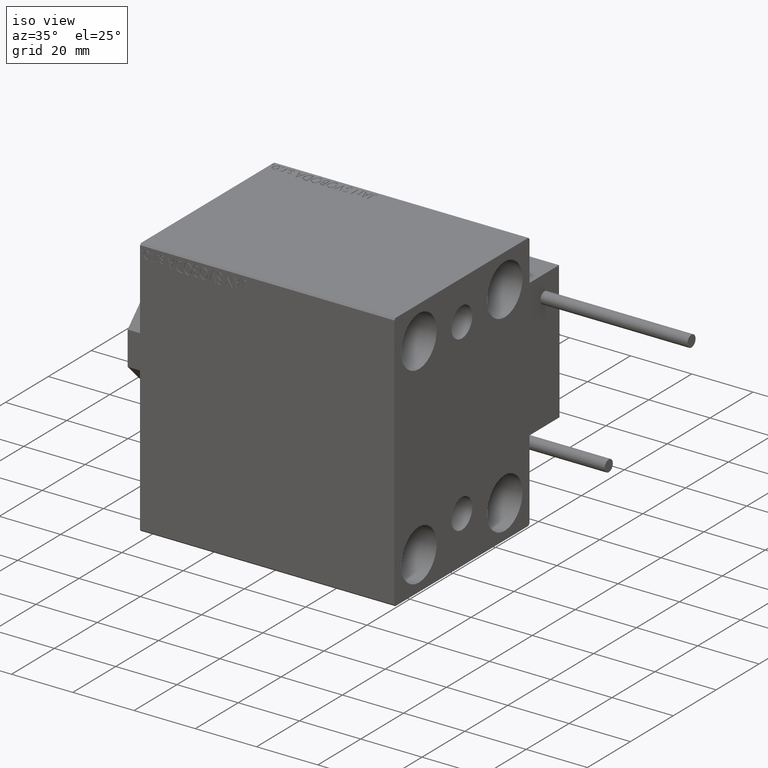
[diagram: clean part render]
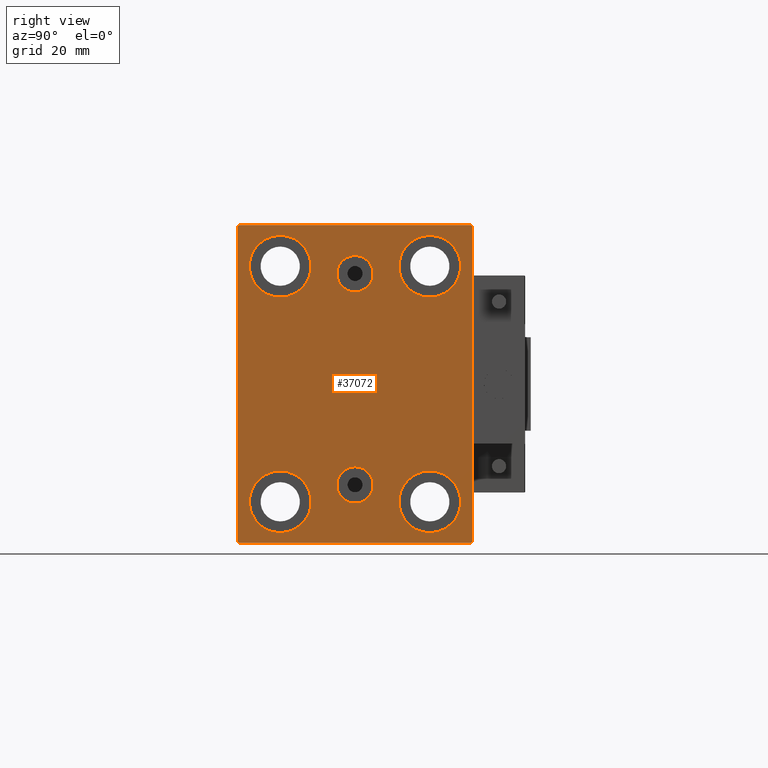
[diagram: tour spotlight — one face highlighted and labeled with its STEP entity id]
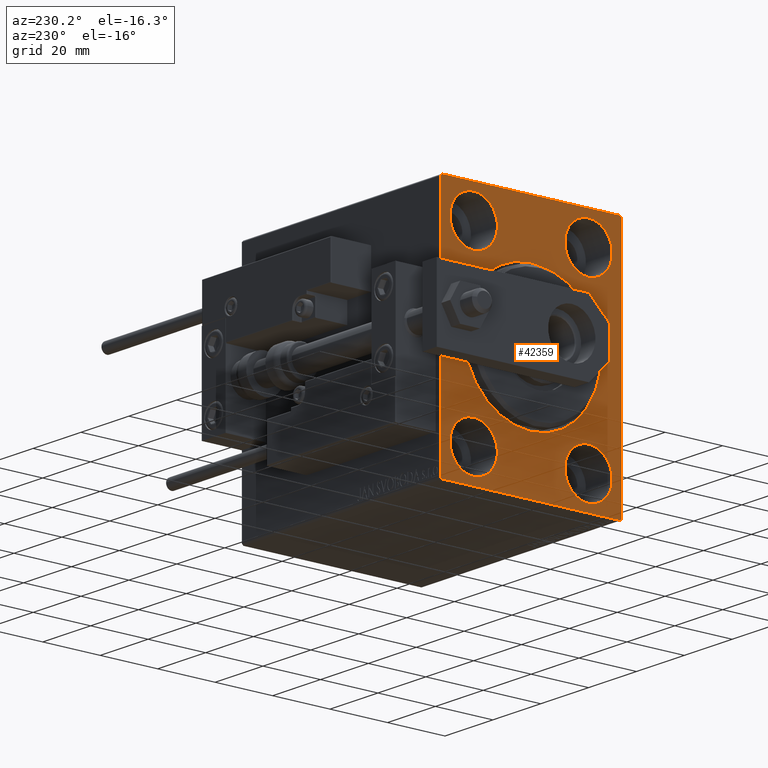
[diagram: tour spotlight — one face highlighted and labeled with its STEP entity id]
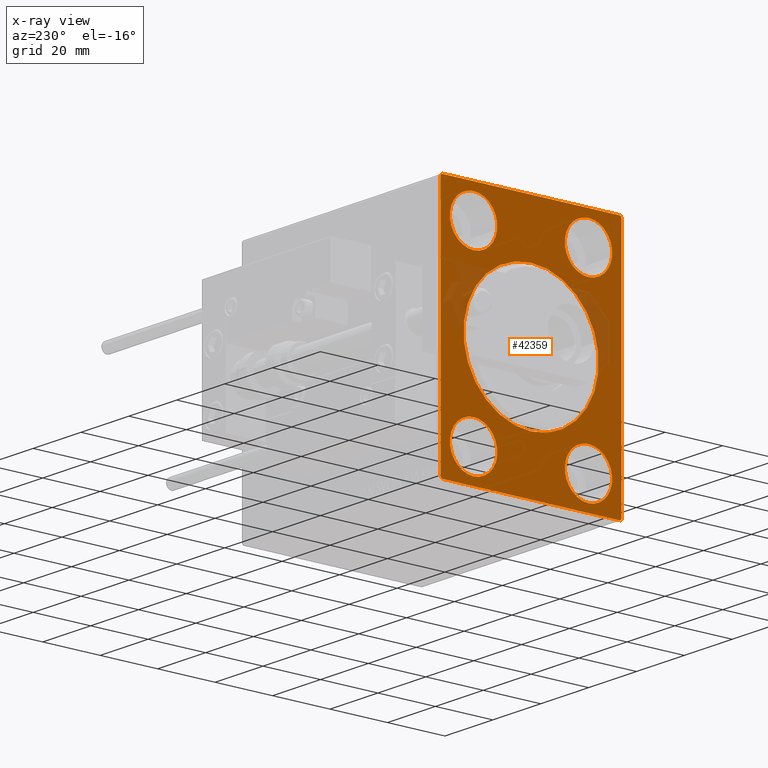
[diagram: x-ray of the same camera — body ghosted, this tour face saturated]
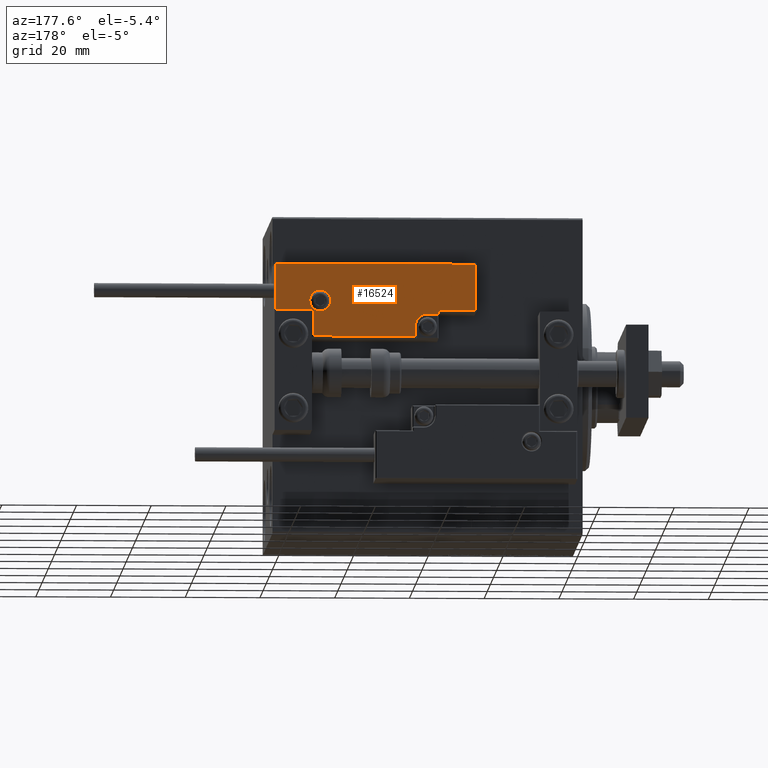
[diagram: tour spotlight — one face highlighted and labeled with its STEP entity id]
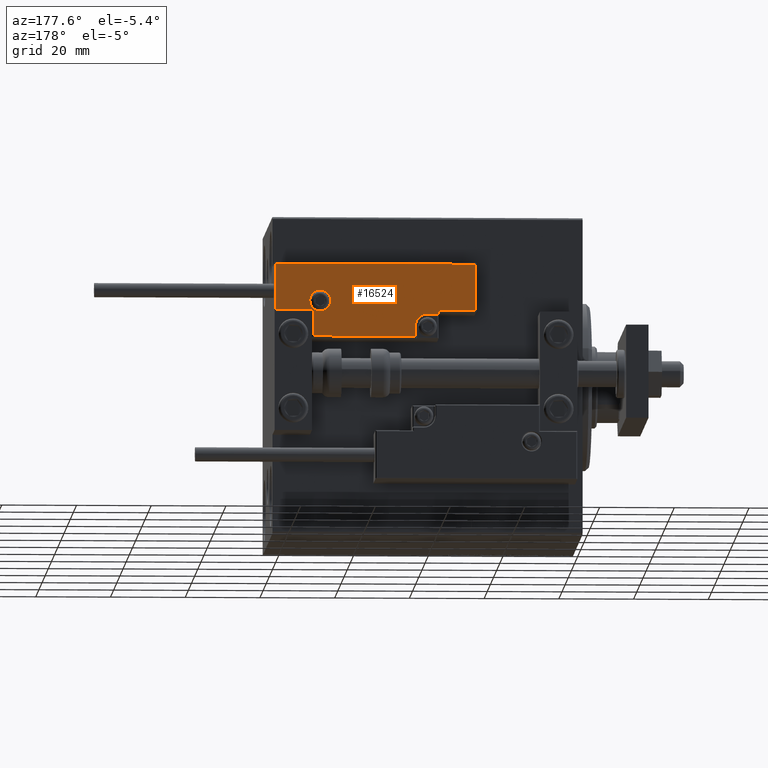
[diagram: tour spotlight — one face highlighted and labeled with its STEP entity id]
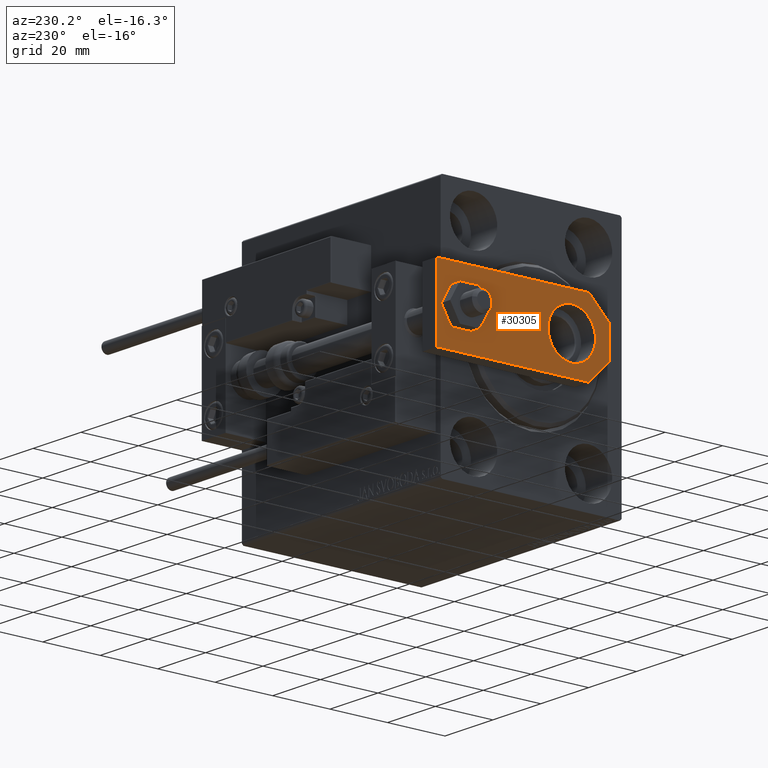
[diagram: tour spotlight — one face highlighted and labeled with its STEP entity id]
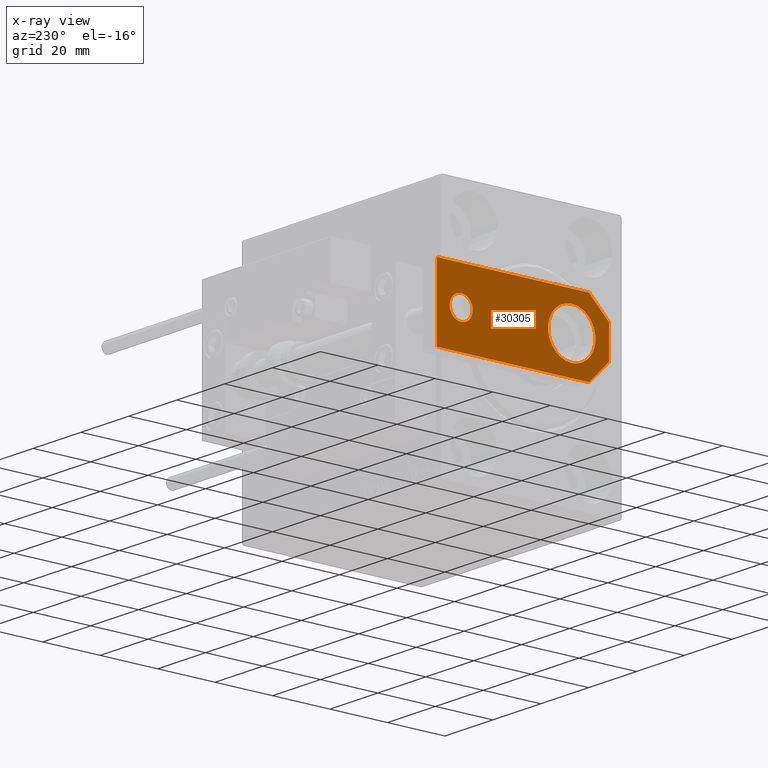
[diagram: x-ray of the same camera — body ghosted, this tour face saturated]
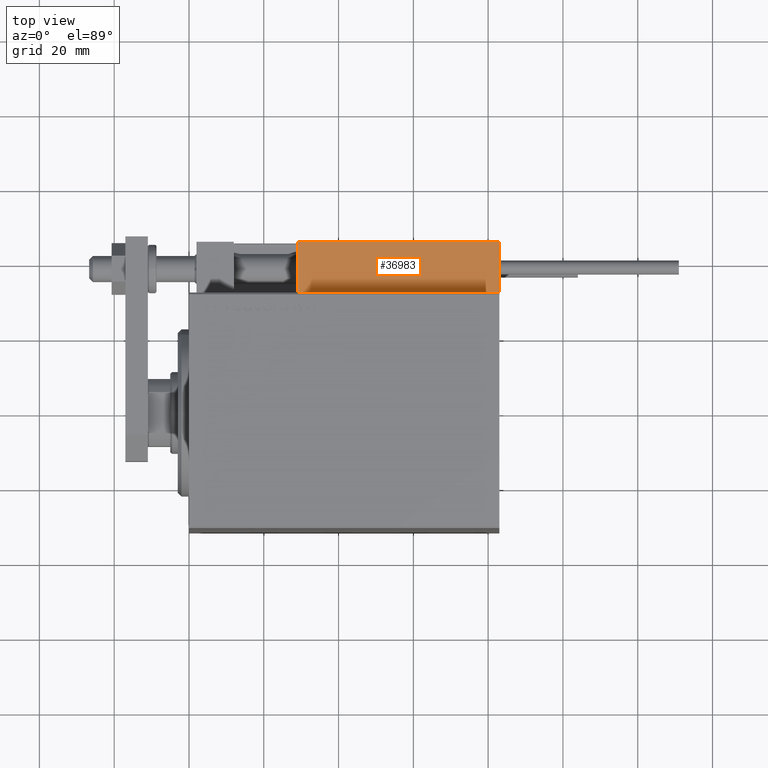
[diagram: tour spotlight — one face highlighted and labeled with its STEP entity id]
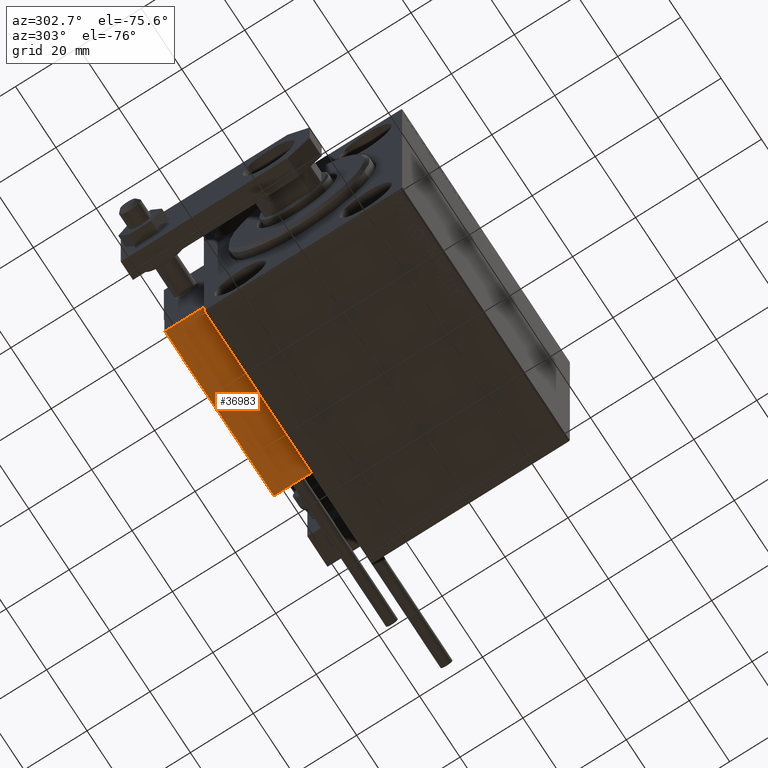
[diagram: tour spotlight — one face highlighted and labeled with its STEP entity id]
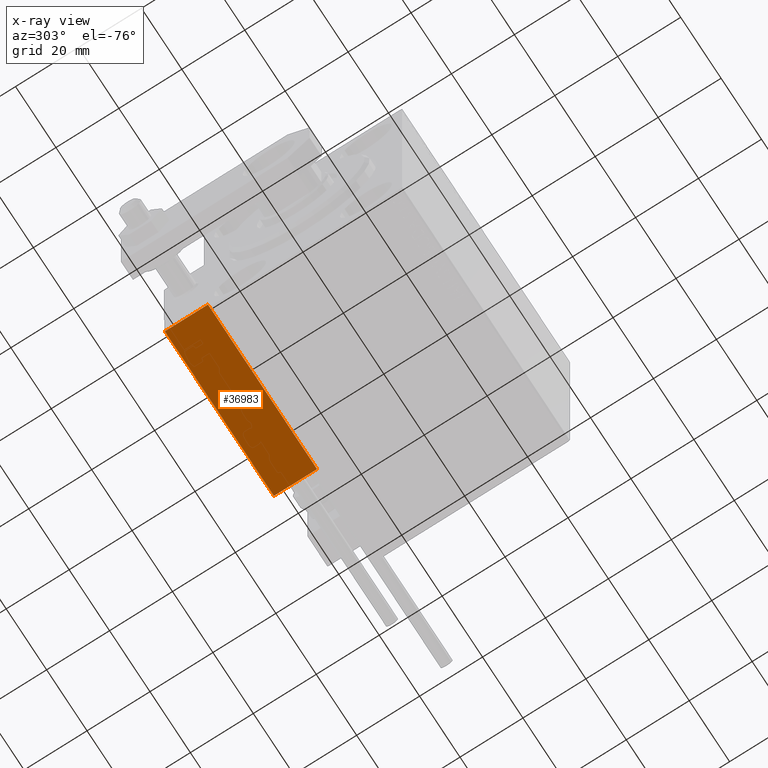
[diagram: x-ray of the same camera — body ghosted, this tour face saturated]
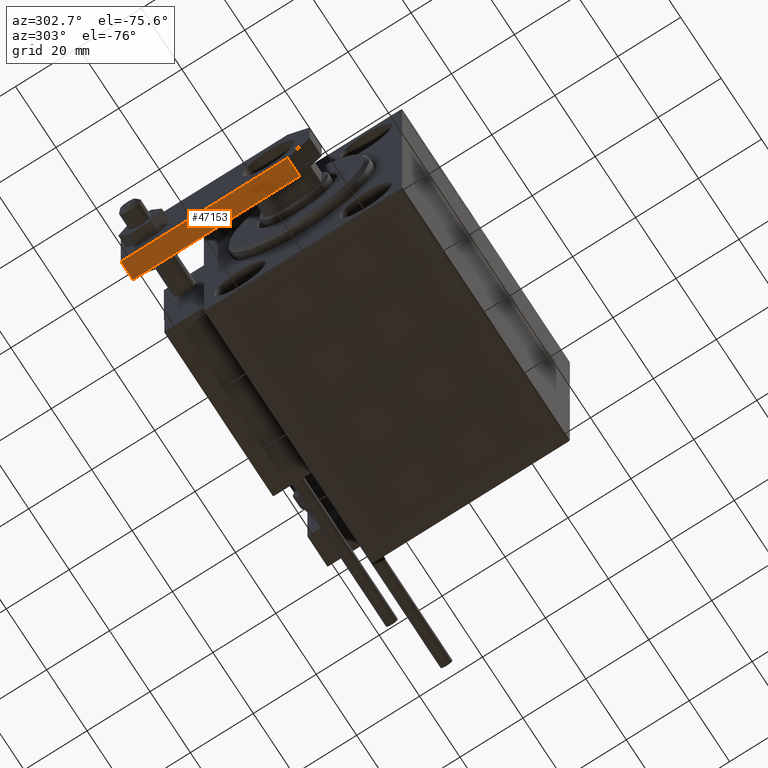
[diagram: tour spotlight — one face highlighted and labeled with its STEP entity id]
A machine part: a face-by-face anatomy tour. The part has 1278 B-rep faces; the first image is the clean iso view, then the 8 largest visible faces are spotlighted one at a time (largest first), each with its STEP entity span.

Face 1 — right view, entity #37072. In plain terms, the highlighted planar face has unit normal (1, 0, 0).
Definition (entity closure, byte-faithful):
#141 = CARTESIAN_POINT ( 'NONE',  ( 83.00000000000000000, -31.00000000000000000, -42.50000000000000711 ) ) ;
#204 = VERTEX_POINT ( 'NONE', #38716 ) ;
#364 = LINE ( 'NONE', #602, #26928 ) ;
#461 = ORIENTED_EDGE ( 'NONE', *, *, #40541, .T. ) ;
#602 = CARTESIAN_POINT ( 'NONE',  ( 83.00000000000000000, -31.50000000000000000, 42.49999999999999289 ) ) ;
#981 = EDGE_LOOP ( 'NONE', ( #21574, #31951 ) ) ;
#1050 = EDGE_CURVE ( 'NONE', #41950, #204, #40024, .T. ) ;
#1293 = ORIENTED_EDGE ( 'NONE', *, *, #30634, .T. ) ;
#1425 = DIRECTION ( 'NONE',  ( -0.000000000000000000, -0.7071067811865474617, 0.7071067811865474617 ) ) ;
#1792 = CARTESIAN_POINT ( 'NONE',  ( 83.00000000000000000, -20.00000000000000355, -31.49999999999999289 ) ) ;
#2329 = ORIENTED_EDGE ( 'NONE', *, *, #1050, .T. ) ;
#2382 = DIRECTION ( 'NONE',  ( 0.000000000000000000, 0.000000000000000000, 1.000000000000000000 ) ) ;
#2554 = ORIENTED_EDGE ( 'NONE', *, *, #26298, .T. ) ;
#2928 = DIRECTION ( 'NONE',  ( -1.000000000000000000, -0.000000000000000000, -0.000000000000000000 ) ) ;
#3790 = EDGE_LOOP ( 'NONE', ( #40419, #1293 ) ) ;
#3815 = VECTOR ( 'NONE', #9219, 1000.000000000000000 ) ;
#3862 = DIRECTION ( 'NONE',  ( 1.000000000000000000, 0.000000000000000000, -0.000000000000000000 ) ) ;
#3907 = EDGE_CURVE ( 'NONE', #204, #46506, #39983, .T. ) ;
#4143 = ORIENTED_EDGE ( 'NONE', *, *, #21957, .F. ) ;
#4765 = VERTEX_POINT ( 'NONE', #35569 ) ;
#5102 = DIRECTION ( 'NONE',  ( 0.000000000000000000, 0.000000000000000000, 1.000000000000000000 ) ) ;
#5755 = AXIS2_PLACEMENT_3D ( 'NONE', #25705, #41119, #2382 ) ;
#5764 = EDGE_CURVE ( 'NONE', #7198, #27662, #10572, .T. ) ;
#5915 = ORIENTED_EDGE ( 'NONE', *, *, #48591, .T. ) ;
#6066 = VECTOR ( 'NONE', #47652, 1000.000000000000000 ) ;
#6118 = EDGE_CURVE ( 'NONE', #18318, #29846, #17032, .T. ) ;
#6269 = CARTESIAN_POINT ( 'NONE',  ( 83.00000000000000000, 20.00000000000000355, 31.50000000000000000 ) ) ;
#6390 = EDGE_CURVE ( 'NONE', #27258, #42237, #12982, .T. ) ;
#6736 = CARTESIAN_POINT ( 'NONE',  ( 83.00000000000000000, 19.99999999999999645, -31.49999999999999289 ) ) ;
#7023 = FACE_BOUND ( 'NONE', #15013, .T. ) ;
#7198 = VERTEX_POINT ( 'NONE', #23782 ) ;
#7646 = VERTEX_POINT ( 'NONE', #141 ) ;
#7760 = CARTESIAN_POINT ( 'NONE',  ( 83.00000000000000000, -36.75000000000000000, 36.75000000000000000 ) ) ;
#8028 = DIRECTION ( 'NONE',  ( 0.000000000000000000, 0.000000000000000000, -1.000000000000000000 ) ) ;
#8148 = AXIS2_PLACEMENT_3D ( 'NONE', #38940, #35156, #26453 ) ;
#8718 = LINE ( 'NONE', #13770, #3815 ) ;
#8837 = CARTESIAN_POINT ( 'NONE',  ( 83.00000000000000000, -31.50000000000000000, -42.00000000000000711 ) ) ;
#8979 = AXIS2_PLACEMENT_3D ( 'NONE', #35451, #11911, #20025 ) ;
#8985 = ORIENTED_EDGE ( 'NONE', *, *, #10258, .T. ) ;
#9219 = DIRECTION ( 'NONE',  ( 0.000000000000000000, 1.000000000000000000, 0.000000000000000000 ) ) ;
#9344 = DIRECTION ( 'NONE',  ( -1.000000000000000000, -0.000000000000000000, -0.000000000000000000 ) ) ;
#10258 = EDGE_CURVE ( 'NONE', #37491, #30023, #364, .T. ) ;
#10572 = CIRCLE ( 'NONE', #24347, 4.859999999999995879 ) ;
#11013 = VERTEX_POINT ( 'NONE', #41412 ) ;
#11244 = ORIENTED_EDGE ( 'NONE', *, *, #38583, .T. ) ;
#11347 = VERTEX_POINT ( 'NONE', #49706 ) ;
#11888 = CARTESIAN_POINT ( 'NONE',  ( 83.00000000000000000, -31.50000000000000000, 41.99999999999999289 ) ) ;
#11911 = DIRECTION ( 'NONE',  ( -1.000000000000000000, -0.000000000000000000, -0.000000000000000000 ) ) ;
#12741 = ORIENTED_EDGE ( 'NONE', *, *, #37970, .F. ) ;
#12982 = CIRCLE ( 'NONE', #8148, 4.859999999999999432 ) ;
#13256 = VERTEX_POINT ( 'NONE', #28490 ) ;
#13300 = AXIS2_PLACEMENT_3D ( 'NONE', #6269, #9344, #44258 ) ;
#13770 = CARTESIAN_POINT ( 'NONE',  ( 83.00000000000000000, -31.50000000000000000, -42.50000000000000711 ) ) ;
#13877 = EDGE_CURVE ( 'NONE', #11013, #13256, #21355, .T. ) ;
#14392 = DIRECTION ( 'NONE',  ( 0.000000000000000000, 0.000000000000000000, 1.000000000000000000 ) ) ;
#14485 = AXIS2_PLACEMENT_3D ( 'NONE', #1792, #44328, #5102 ) ;
#14890 = PLANE ( 'NONE',  #49324 ) ;
#15013 = EDGE_LOOP ( 'NONE', ( #43323, #4143 ) ) ;
#15022 = CARTESIAN_POINT ( 'NONE',  ( 83.00000000000000000, 3.306546357697852550E-15, -26.99999999999998934 ) ) ;
#15287 = AXIS2_PLACEMENT_3D ( 'NONE', #36566, #37310, #17078 ) ;
#15339 = DIRECTION ( 'NONE',  ( -0.000000000000000000, 0.7071067811865474617, -0.7071067811865474617 ) ) ;
#15729 = CARTESIAN_POINT ( 'NONE',  ( 83.00000000000000000, 31.50000000000001421, -42.50000000000000711 ) ) ;
#16074 = DIRECTION ( 'NONE',  ( 0.000000000000000000, 0.000000000000000000, -1.000000000000000000 ) ) ;
#16110 = VECTOR ( 'NONE', #30824, 1000.000000000000114 ) ;
#16115 = ORIENTED_EDGE ( 'NONE', *, *, #3907, .T. ) ;
#16177 = VECTOR ( 'NONE', #46598, 1000.000000000000000 ) ;
#16192 = VERTEX_POINT ( 'NONE', #32490 ) ;
#16271 = CARTESIAN_POINT ( 'NONE',  ( 83.00000000000000000, 20.00000000000000355, 23.25000000000000355 ) ) ;
#16920 = CIRCLE ( 'NONE', #32286, 8.249999999999992895 ) ;
#17032 = CIRCLE ( 'NONE', #8979, 8.250000000000000000 ) ;
#17078 = DIRECTION ( 'NONE',  ( 0.000000000000000000, 0.000000000000000000, 1.000000000000000000 ) ) ;
#17620 = EDGE_CURVE ( 'NONE', #16192, #31784, #48404, .T. ) ;
#17637 = ORIENTED_EDGE ( 'NONE', *, *, #5764, .F. ) ;
#18318 = VERTEX_POINT ( 'NONE', #44424 ) ;
#18461 = DIRECTION ( 'NONE',  ( 0.000000000000000000, 0.000000000000000000, 1.000000000000000000 ) ) ;
#18651 = DIRECTION ( 'NONE',  ( 0.000000000000000000, 0.000000000000000000, 1.000000000000000000 ) ) ;
#19189 = CARTESIAN_POINT ( 'NONE',  ( 83.00000000000000000, 3.901724702083465828E-15, -22.13999999999999346 ) ) ;
#19332 = DIRECTION ( 'NONE',  ( 0.000000000000000000, 0.000000000000000000, 1.000000000000000000 ) ) ;
#19745 = ORIENTED_EDGE ( 'NONE', *, *, #44470, .T. ) ;
#20025 = DIRECTION ( 'NONE',  ( 0.000000000000000000, 0.000000000000000000, 1.000000000000000000 ) ) ;
#20205 = EDGE_CURVE ( 'NONE', #34613, #4765, #34356, .T. ) ;
#20254 = CARTESIAN_POINT ( 'NONE',  ( 83.00000000000000000, -2.976515330312223011E-15, 34.36000000000000654 ) ) ;
#20765 = EDGE_LOOP ( 'NONE', ( #17637, #12741 ) ) ;
#20853 = CARTESIAN_POINT ( 'NONE',  ( 83.00000000000000000, 31.50000000000000000, 42.50000000000000711 ) ) ;
#21225 = LINE ( 'NONE', #36135, #26642 ) ;
#21355 = CIRCLE ( 'NONE', #49635, 8.250000000000000000 ) ;
#21574 = ORIENTED_EDGE ( 'NONE', *, *, #6118, .T. ) ;
#21770 = CIRCLE ( 'NONE', #14485, 8.250000000000000000 ) ;
#21957 = EDGE_CURVE ( 'NONE', #42237, #27258, #24707, .T. ) ;
#22031 = DIRECTION ( 'NONE',  ( -1.000000000000000000, -0.000000000000000000, -0.000000000000000000 ) ) ;
#22057 = ORIENTED_EDGE ( 'NONE', *, *, #47800, .T. ) ;
#23150 = CARTESIAN_POINT ( 'NONE',  ( 83.00000000000000000, 3.306546357697852550E-15, -26.99999999999998934 ) ) ;
#23370 = EDGE_LOOP ( 'NONE', ( #33944, #19745, #8985, #11244, #2554, #2329, #16115, #22057 ) ) ;
#23473 = AXIS2_PLACEMENT_3D ( 'NONE', #15022, #30473, #45885 ) ;
#23613 = CIRCLE ( 'NONE', #5755, 8.250000000000000000 ) ;
#23782 = CARTESIAN_POINT ( 'NONE',  ( 83.00000000000000000, 3.306546357697852550E-15, -31.85999999999998522 ) ) ;
#24347 = AXIS2_PLACEMENT_3D ( 'NONE', #23150, #3862, #19332 ) ;
#24707 = CIRCLE ( 'NONE', #40027, 4.859999999999999432 ) ;
#25280 = ORIENTED_EDGE ( 'NONE', *, *, #20205, .T. ) ;
#25705 = CARTESIAN_POINT ( 'NONE',  ( 83.00000000000000000, 19.99999999999999645, -31.49999999999999289 ) ) ;
#25766 = AXIS2_PLACEMENT_3D ( 'NONE', #30113, #34159, #14392 ) ;
#25805 = CIRCLE ( 'NONE', #25766, 8.249999999999992895 ) ;
#26298 = EDGE_CURVE ( 'NONE', #7646, #41950, #8718, .T. ) ;
#26453 = DIRECTION ( 'NONE',  ( 0.000000000000000000, 0.000000000000000000, -1.000000000000000000 ) ) ;
#26469 = VERTEX_POINT ( 'NONE', #30227 ) ;
#26543 = FACE_BOUND ( 'NONE', #43028, .T. ) ;
#26642 = VECTOR ( 'NONE', #1425, 1000.000000000000114 ) ;
#26928 = VECTOR ( 'NONE', #16074, 1000.000000000000000 ) ;
#27258 = VERTEX_POINT ( 'NONE', #49365 ) ;
#27662 = VERTEX_POINT ( 'NONE', #19189 ) ;
#28490 = CARTESIAN_POINT ( 'NONE',  ( 83.00000000000000000, 19.99999999999999645, -23.24999999999999289 ) ) ;
#29032 = CIRCLE ( 'NONE', #15287, 8.249999999999992895 ) ;
#29139 = CIRCLE ( 'NONE', #23473, 4.859999999999995879 ) ;
#29846 = VERTEX_POINT ( 'NONE', #47435 ) ;
#30023 = VERTEX_POINT ( 'NONE', #8837 ) ;
#30113 = CARTESIAN_POINT ( 'NONE',  ( 83.00000000000000000, -19.99999999999999645, 31.50000000000000000 ) ) ;
#30227 = CARTESIAN_POINT ( 'NONE',  ( 83.00000000000000000, -19.99999999999999645, 23.25000000000000355 ) ) ;
#30385 = ORIENTED_EDGE ( 'NONE', *, *, #13877, .T. ) ;
#30473 = DIRECTION ( 'NONE',  ( 1.000000000000000000, 0.000000000000000000, -0.000000000000000000 ) ) ;
#30634 = EDGE_CURVE ( 'NONE', #11347, #26469, #29032, .T. ) ;
#30824 = DIRECTION ( 'NONE',  ( 0.000000000000000000, -0.7071067811865474617, -0.7071067811865474617 ) ) ;
#30852 = EDGE_LOOP ( 'NONE', ( #30385, #461 ) ) ;
#31069 = EDGE_CURVE ( 'NONE', #29846, #18318, #21770, .T. ) ;
#31337 = FACE_BOUND ( 'NONE', #3790, .T. ) ;
#31784 = VERTEX_POINT ( 'NONE', #32212 ) ;
#31951 = ORIENTED_EDGE ( 'NONE', *, *, #31069, .T. ) ;
#32212 = CARTESIAN_POINT ( 'NONE',  ( 83.00000000000000000, -31.00000000000000000, 42.49999999999999289 ) ) ;
#32286 = AXIS2_PLACEMENT_3D ( 'NONE', #33673, #22031, #18461 ) ;
#32490 = CARTESIAN_POINT ( 'NONE',  ( 83.00000000000000000, 30.99999999999998579, 42.50000000000000711 ) ) ;
#32758 = DIRECTION ( 'NONE',  ( 0.000000000000000000, 0.000000000000000000, -1.000000000000000000 ) ) ;
#33673 = CARTESIAN_POINT ( 'NONE',  ( 83.00000000000000000, 20.00000000000000355, 31.50000000000000000 ) ) ;
#33944 = ORIENTED_EDGE ( 'NONE', *, *, #17620, .T. ) ;
#34159 = DIRECTION ( 'NONE',  ( -1.000000000000000000, -0.000000000000000000, -0.000000000000000000 ) ) ;
#34265 = EDGE_CURVE ( 'NONE', #26469, #11347, #25805, .T. ) ;
#34356 = CIRCLE ( 'NONE', #13300, 8.249999999999992895 ) ;
#34581 = LINE ( 'NONE', #50006, #48550 ) ;
#34613 = VERTEX_POINT ( 'NONE', #16271 ) ;
#34622 = FACE_BOUND ( 'NONE', #981, .T. ) ;
#34877 = FACE_BOUND ( 'NONE', #20765, .T. ) ;
#35156 = DIRECTION ( 'NONE',  ( 1.000000000000000000, 0.000000000000000000, 0.000000000000000000 ) ) ;
#35448 = CARTESIAN_POINT ( 'NONE',  ( 83.00000000000000000, 31.50000000000000000, 41.99999999999999289 ) ) ;
#35451 = CARTESIAN_POINT ( 'NONE',  ( 83.00000000000000000, -20.00000000000000355, -31.49999999999999289 ) ) ;
#35569 = CARTESIAN_POINT ( 'NONE',  ( 83.00000000000000000, 20.00000000000000355, 39.74999999999999289 ) ) ;
#36135 = CARTESIAN_POINT ( 'NONE',  ( 83.00000000000000000, 36.74999999999999289, 36.74999999999999289 ) ) ;
#36547 = DIRECTION ( 'NONE',  ( 1.000000000000000000, 0.000000000000000000, 0.000000000000000000 ) ) ;
#36566 = CARTESIAN_POINT ( 'NONE',  ( 83.00000000000000000, -19.99999999999999645, 31.50000000000000000 ) ) ;
#37072 = ADVANCED_FACE ( 'NONE', ( #7023, #34877, #38416, #31337, #26543, #34622, #38172 ), #14890, .T. ) ;
#37310 = DIRECTION ( 'NONE',  ( -1.000000000000000000, -0.000000000000000000, -0.000000000000000000 ) ) ;
#37491 = VERTEX_POINT ( 'NONE', #11888 ) ;
#37913 = CARTESIAN_POINT ( 'NONE',  ( 83.00000000000000000, 0.000000000000000000, 0.000000000000000000 ) ) ;
#37970 = EDGE_CURVE ( 'NONE', #27662, #7198, #29139, .T. ) ;
#38153 = LINE ( 'NONE', #7760, #16110 ) ;
#38172 = FACE_OUTER_BOUND ( 'NONE', #23370, .T. ) ;
#38416 = FACE_BOUND ( 'NONE', #30852, .T. ) ;
#38583 = EDGE_CURVE ( 'NONE', #30023, #7646, #34581, .T. ) ;
#38716 = CARTESIAN_POINT ( 'NONE',  ( 83.00000000000000000, 31.50000000000001421, -42.00000000000000711 ) ) ;
#38940 = CARTESIAN_POINT ( 'NONE',  ( 83.00000000000000000, -3.571693674697836683E-15, 29.50000000000001066 ) ) ;
#39983 = LINE ( 'NONE', #15729, #16177 ) ;
#40024 = LINE ( 'NONE', #48125, #43652 ) ;
#40027 = AXIS2_PLACEMENT_3D ( 'NONE', #48422, #36547, #32758 ) ;
#40267 = DIRECTION ( 'NONE',  ( -0.000000000000000000, 0.7071067811865474617, 0.7071067811865474617 ) ) ;
#40419 = ORIENTED_EDGE ( 'NONE', *, *, #34265, .T. ) ;
#40541 = EDGE_CURVE ( 'NONE', #13256, #11013, #23613, .T. ) ;
#41119 = DIRECTION ( 'NONE',  ( -1.000000000000000000, -0.000000000000000000, -0.000000000000000000 ) ) ;
#41260 = CARTESIAN_POINT ( 'NONE',  ( 83.00000000000000000, 31.00000000000001421, -42.50000000000000711 ) ) ;
#41412 = CARTESIAN_POINT ( 'NONE',  ( 83.00000000000000000, 19.99999999999999645, -39.74999999999999289 ) ) ;
#41950 = VERTEX_POINT ( 'NONE', #41260 ) ;
#42237 = VERTEX_POINT ( 'NONE', #20254 ) ;
#43028 = EDGE_LOOP ( 'NONE', ( #25280, #5915 ) ) ;
#43323 = ORIENTED_EDGE ( 'NONE', *, *, #6390, .F. ) ;
#43652 = VECTOR ( 'NONE', #40267, 1000.000000000000114 ) ;
#44258 = DIRECTION ( 'NONE',  ( 0.000000000000000000, 0.000000000000000000, 1.000000000000000000 ) ) ;
#44328 = DIRECTION ( 'NONE',  ( -1.000000000000000000, -0.000000000000000000, -0.000000000000000000 ) ) ;
#44424 = CARTESIAN_POINT ( 'NONE',  ( 83.00000000000000000, -20.00000000000000355, -39.74999999999999289 ) ) ;
#44470 = EDGE_CURVE ( 'NONE', #31784, #37491, #38153, .T. ) ;
#45758 = DIRECTION ( 'NONE',  ( 1.000000000000000000, 0.000000000000000000, 0.000000000000000000 ) ) ;
#45885 = DIRECTION ( 'NONE',  ( 0.000000000000000000, 0.000000000000000000, 1.000000000000000000 ) ) ;
#46506 = VERTEX_POINT ( 'NONE', #35448 ) ;
#46598 = DIRECTION ( 'NONE',  ( 0.000000000000000000, -1.632680918566406300E-16, 1.000000000000000000 ) ) ;
#47435 = CARTESIAN_POINT ( 'NONE',  ( 83.00000000000000000, -20.00000000000000355, -23.24999999999999289 ) ) ;
#47652 = DIRECTION ( 'NONE',  ( 0.000000000000000000, -1.000000000000000000, -2.202823461557850341E-16 ) ) ;
#47800 = EDGE_CURVE ( 'NONE', #46506, #16192, #21225, .T. ) ;
#48125 = CARTESIAN_POINT ( 'NONE',  ( 83.00000000000000000, 36.75000000000001421, -36.75000000000001421 ) ) ;
#48404 = LINE ( 'NONE', #20853, #6066 ) ;
#48422 = CARTESIAN_POINT ( 'NONE',  ( 83.00000000000000000, -3.571693674697836683E-15, 29.50000000000001066 ) ) ;
#48550 = VECTOR ( 'NONE', #15339, 1000.000000000000114 ) ;
#48591 = EDGE_CURVE ( 'NONE', #4765, #34613, #16920, .T. ) ;
#49324 = AXIS2_PLACEMENT_3D ( 'NONE', #37913, #45758, #8028 ) ;
#49365 = CARTESIAN_POINT ( 'NONE',  ( 83.00000000000000000, -3.571693674697836683E-15, 24.64000000000001123 ) ) ;
#49635 = AXIS2_PLACEMENT_3D ( 'NONE', #6736, #2928, #18651 ) ;
#49706 = CARTESIAN_POINT ( 'NONE',  ( 83.00000000000000000, -19.99999999999999645, 39.74999999999999289 ) ) ;
#50006 = CARTESIAN_POINT ( 'NONE',  ( 83.00000000000000000, -36.75000000000000711, -36.75000000000000711 ) ) ;

Face 2 — auxiliary view, entity #42359. An x-ray twin of the same camera follows (body ghosted, this face saturated) — the face is partly hidden behind the body. In plain terms, the highlighted planar face has unit normal (1, 0, 0).
Definition (entity closure, byte-faithful):
#43 = VERTEX_POINT ( 'NONE', #5575 ) ;
#292 = DIRECTION ( 'NONE',  ( 0.000000000000000000, 0.000000000000000000, 1.000000000000000000 ) ) ;
#386 = AXIS2_PLACEMENT_3D ( 'NONE', #39268, #36207, #28393 ) ;
#505 = ORIENTED_EDGE ( 'NONE', *, *, #18734, .F. ) ;
#601 = DIRECTION ( 'NONE',  ( -1.000000000000000000, 0.000000000000000000, 0.000000000000000000 ) ) ;
#1408 = EDGE_CURVE ( 'NONE', #28405, #32614, #44384, .T. ) ;
#1593 = CARTESIAN_POINT ( 'NONE',  ( 0.000000000000000000, 30.99999999999998579, 42.50000000000000711 ) ) ;
#1876 = EDGE_CURVE ( 'NONE', #10695, #2032, #24320, .T. ) ;
#2032 = VERTEX_POINT ( 'NONE', #50005 ) ;
#2133 = CARTESIAN_POINT ( 'NONE',  ( 0.000000000000000000, 31.50000000000000000, 42.50000000000000711 ) ) ;
#2246 = DIRECTION ( 'NONE',  ( -0.000000000000000000, 0.7071067811865474617, 0.7071067811865474617 ) ) ;
#2684 = ORIENTED_EDGE ( 'NONE', *, *, #8575, .F. ) ;
#2818 = ORIENTED_EDGE ( 'NONE', *, *, #23191, .F. ) ;
#3612 = CIRCLE ( 'NONE', #386, 8.250000000000000000 ) ;
#4707 = DIRECTION ( 'NONE',  ( 0.000000000000000000, -0.7071067811865474617, -0.7071067811865474617 ) ) ;
#4906 = CARTESIAN_POINT ( 'NONE',  ( 0.000000000000000000, 0.000000000000000000, 0.000000000000000000 ) ) ;
#4980 = CARTESIAN_POINT ( 'NONE',  ( 0.000000000000000000, -20.00000000000000355, -31.49999999999999289 ) ) ;
#5575 = CARTESIAN_POINT ( 'NONE',  ( 0.000000000000000000, 19.99999999999999645, -23.24999999999999289 ) ) ;
#5770 = FACE_BOUND ( 'NONE', #45940, .T. ) ;
#6684 = EDGE_CURVE ( 'NONE', #20076, #32614, #8991, .T. ) ;
#7010 = EDGE_LOOP ( 'NONE', ( #2684, #17781, #21483, #16632, #23801, #18294, #13056, #25664 ) ) ;
#7963 = DIRECTION ( 'NONE',  ( 0.000000000000000000, 0.000000000000000000, -1.000000000000000000 ) ) ;
#8117 = CARTESIAN_POINT ( 'NONE',  ( 0.000000000000000000, 2.877919977996280715E-15, -23.50000000000000355 ) ) ;
#8465 = CARTESIAN_POINT ( 'NONE',  ( 0.000000000000000000, 19.99999999999999645, -31.49999999999999289 ) ) ;
#8563 = CIRCLE ( 'NONE', #40061, 8.249999999999992895 ) ;
#8575 = EDGE_CURVE ( 'NONE', #43418, #48372, #20850, .T. ) ;
#8991 = LINE ( 'NONE', #13290, #13862 ) ;
#9022 = LINE ( 'NONE', #16376, #38420 ) ;
#9432 = CIRCLE ( 'NONE', #20762, 8.250000000000000000 ) ;
#9914 = DIRECTION ( 'NONE',  ( 0.000000000000000000, 0.000000000000000000, 1.000000000000000000 ) ) ;
#10140 = EDGE_CURVE ( 'NONE', #37208, #19486, #12019, .T. ) ;
#10695 = VERTEX_POINT ( 'NONE', #29903 ) ;
#11753 = CIRCLE ( 'NONE', #35223, 8.249999999999992895 ) ;
#11785 = CARTESIAN_POINT ( 'NONE',  ( 0.000000000000000000, -19.99999999999999645, 23.25000000000000355 ) ) ;
#11856 = CARTESIAN_POINT ( 'NONE',  ( 0.000000000000000000, 0.000000000000000000, 23.50000000000000355 ) ) ;
#12019 = LINE ( 'NONE', #43139, #18020 ) ;
#12579 = AXIS2_PLACEMENT_3D ( 'NONE', #8465, #23931, #35555 ) ;
#12927 = ORIENTED_EDGE ( 'NONE', *, *, #41630, .F. ) ;
#13056 = ORIENTED_EDGE ( 'NONE', *, *, #10140, .F. ) ;
#13290 = CARTESIAN_POINT ( 'NONE',  ( 0.000000000000000000, 31.50000000000001421, -42.50000000000000711 ) ) ;
#13516 = AXIS2_PLACEMENT_3D ( 'NONE', #33887, #601, #38855 ) ;
#13700 = CARTESIAN_POINT ( 'NONE',  ( 0.000000000000000000, -19.99999999999999645, 31.50000000000000000 ) ) ;
#13862 = VECTOR ( 'NONE', #43904, 1000.000000000000000 ) ;
#13885 = FACE_BOUND ( 'NONE', #34406, .T. ) ;
#13998 = CIRCLE ( 'NONE', #18044, 8.249999999999992895 ) ;
#14136 = FACE_BOUND ( 'NONE', #41393, .T. ) ;
#14501 = CARTESIAN_POINT ( 'NONE',  ( 0.000000000000000000, 31.50000000000000000, 41.99999999999999289 ) ) ;
#14581 = VERTEX_POINT ( 'NONE', #8117 ) ;
#14609 = DIRECTION ( 'NONE',  ( -0.000000000000000000, -0.7071067811865474617, 0.7071067811865474617 ) ) ;
#14717 = VERTEX_POINT ( 'NONE', #11856 ) ;
#14813 = ORIENTED_EDGE ( 'NONE', *, *, #25533, .F. ) ;
#14823 = VERTEX_POINT ( 'NONE', #44219 ) ;
#15153 = CIRCLE ( 'NONE', #13516, 8.249999999999992895 ) ;
#16026 = EDGE_CURVE ( 'NONE', #28405, #34896, #17857, .T. ) ;
#16376 = CARTESIAN_POINT ( 'NONE',  ( 0.000000000000000000, 31.50000000000001421, -42.00000000000000711 ) ) ;
#16632 = ORIENTED_EDGE ( 'NONE', *, *, #1408, .T. ) ;
#16837 = CARTESIAN_POINT ( 'NONE',  ( 0.000000000000000000, 0.000000000000000000, 0.000000000000000000 ) ) ;
#16962 = VERTEX_POINT ( 'NONE', #32303 ) ;
#17244 = ORIENTED_EDGE ( 'NONE', *, *, #26242, .F. ) ;
#17305 = DIRECTION ( 'NONE',  ( -1.000000000000000000, 0.000000000000000000, 0.000000000000000000 ) ) ;
#17721 = AXIS2_PLACEMENT_3D ( 'NONE', #45733, #26521, #41920 ) ;
#17781 = ORIENTED_EDGE ( 'NONE', *, *, #44019, .T. ) ;
#17799 = DIRECTION ( 'NONE',  ( -1.000000000000000000, 0.000000000000000000, 0.000000000000000000 ) ) ;
#17857 = LINE ( 'NONE', #2133, #20549 ) ;
#18020 = VECTOR ( 'NONE', #31533, 1000.000000000000000 ) ;
#18044 = AXIS2_PLACEMENT_3D ( 'NONE', #32995, #17305, #48416 ) ;
#18157 = CARTESIAN_POINT ( 'NONE',  ( 0.000000000000000000, -31.50000000000000000, 41.99999999999999289 ) ) ;
#18294 = ORIENTED_EDGE ( 'NONE', *, *, #21579, .T. ) ;
#18528 = CIRCLE ( 'NONE', #35513, 23.50000000000000355 ) ;
#18734 = EDGE_CURVE ( 'NONE', #14823, #30590, #11753, .T. ) ;
#19486 = VERTEX_POINT ( 'NONE', #37663 ) ;
#20072 = ORIENTED_EDGE ( 'NONE', *, *, #1876, .F. ) ;
#20076 = VERTEX_POINT ( 'NONE', #22564 ) ;
#20549 = VECTOR ( 'NONE', #45418, 1000.000000000000000 ) ;
#20704 = DIRECTION ( 'NONE',  ( 0.000000000000000000, 0.000000000000000000, 1.000000000000000000 ) ) ;
#20762 = AXIS2_PLACEMENT_3D ( 'NONE', #23623, #34749, #292 ) ;
#20850 = LINE ( 'NONE', #21108, #47816 ) ;
#20879 = DIRECTION ( 'NONE',  ( -0.000000000000000000, 0.7071067811865474617, -0.7071067811865474617 ) ) ;
#20892 = EDGE_CURVE ( 'NONE', #46313, #43, #3612, .T. ) ;
#21108 = CARTESIAN_POINT ( 'NONE',  ( 0.000000000000000000, -31.50000000000000000, 42.49999999999999289 ) ) ;
#21483 = ORIENTED_EDGE ( 'NONE', *, *, #16026, .F. ) ;
#21579 = EDGE_CURVE ( 'NONE', #20076, #19486, #9022, .T. ) ;
#21593 = CARTESIAN_POINT ( 'NONE',  ( 0.000000000000000000, 20.00000000000000355, 39.74999999999999289 ) ) ;
#21925 = EDGE_CURVE ( 'NONE', #43, #46313, #22281, .T. ) ;
#22281 = CIRCLE ( 'NONE', #12579, 8.250000000000000000 ) ;
#22564 = CARTESIAN_POINT ( 'NONE',  ( 0.000000000000000000, 31.50000000000001421, -42.00000000000000711 ) ) ;
#23191 = EDGE_CURVE ( 'NONE', #30590, #14823, #8563, .T. ) ;
#23623 = CARTESIAN_POINT ( 'NONE',  ( 0.000000000000000000, -20.00000000000000355, -31.49999999999999289 ) ) ;
#23801 = ORIENTED_EDGE ( 'NONE', *, *, #6684, .F. ) ;
#23931 = DIRECTION ( 'NONE',  ( -1.000000000000000000, 0.000000000000000000, 0.000000000000000000 ) ) ;
#24212 = VECTOR ( 'NONE', #2246, 1000.000000000000114 ) ;
#24320 = CIRCLE ( 'NONE', #35624, 8.250000000000000000 ) ;
#25350 = ORIENTED_EDGE ( 'NONE', *, *, #21925, .F. ) ;
#25533 = EDGE_CURVE ( 'NONE', #2032, #10695, #9432, .T. ) ;
#25664 = ORIENTED_EDGE ( 'NONE', *, *, #43313, .T. ) ;
#26242 = EDGE_CURVE ( 'NONE', #47245, #16962, #15153, .T. ) ;
#26347 = ORIENTED_EDGE ( 'NONE', *, *, #44632, .T. ) ;
#26521 = DIRECTION ( 'NONE',  ( 1.000000000000000000, 0.000000000000000000, 0.000000000000000000 ) ) ;
#27551 = VECTOR ( 'NONE', #20879, 1000.000000000000114 ) ;
#27642 = CARTESIAN_POINT ( 'NONE',  ( 0.000000000000000000, -31.50000000000000000, -42.00000000000000711 ) ) ;
#28308 = LINE ( 'NONE', #41427, #29844 ) ;
#28393 = DIRECTION ( 'NONE',  ( 0.000000000000000000, 0.000000000000000000, 1.000000000000000000 ) ) ;
#28405 = VERTEX_POINT ( 'NONE', #34269 ) ;
#28549 = DIRECTION ( 'NONE',  ( -1.000000000000000000, 0.000000000000000000, 0.000000000000000000 ) ) ;
#29585 = FACE_OUTER_BOUND ( 'NONE', #7010, .T. ) ;
#29844 = VECTOR ( 'NONE', #14609, 1000.000000000000114 ) ;
#29862 = CARTESIAN_POINT ( 'NONE',  ( 0.000000000000000000, -31.50000000000000000, 41.99999999999999289 ) ) ;
#29903 = CARTESIAN_POINT ( 'NONE',  ( 0.000000000000000000, -20.00000000000000355, -23.24999999999999289 ) ) ;
#30590 = VERTEX_POINT ( 'NONE', #11785 ) ;
#31289 = EDGE_LOOP ( 'NONE', ( #26347, #34370 ) ) ;
#31533 = DIRECTION ( 'NONE',  ( 0.000000000000000000, 1.000000000000000000, 0.000000000000000000 ) ) ;
#32288 = DIRECTION ( 'NONE',  ( 1.000000000000000000, 0.000000000000000000, 0.000000000000000000 ) ) ;
#32303 = CARTESIAN_POINT ( 'NONE',  ( 0.000000000000000000, 20.00000000000000355, 23.25000000000000355 ) ) ;
#32614 = VERTEX_POINT ( 'NONE', #14501 ) ;
#32995 = CARTESIAN_POINT ( 'NONE',  ( 0.000000000000000000, 20.00000000000000355, 31.50000000000000000 ) ) ;
#33887 = CARTESIAN_POINT ( 'NONE',  ( 0.000000000000000000, 20.00000000000000355, 31.50000000000000000 ) ) ;
#34269 = CARTESIAN_POINT ( 'NONE',  ( 0.000000000000000000, 30.99999999999998579, 42.50000000000000711 ) ) ;
#34370 = ORIENTED_EDGE ( 'NONE', *, *, #47966, .T. ) ;
#34406 = EDGE_LOOP ( 'NONE', ( #505, #2818 ) ) ;
#34749 = DIRECTION ( 'NONE',  ( -1.000000000000000000, 0.000000000000000000, 0.000000000000000000 ) ) ;
#34896 = VERTEX_POINT ( 'NONE', #49645 ) ;
#35038 = AXIS2_PLACEMENT_3D ( 'NONE', #4906, #42630, #7963 ) ;
#35223 = AXIS2_PLACEMENT_3D ( 'NONE', #36785, #17799, #36537 ) ;
#35513 = AXIS2_PLACEMENT_3D ( 'NONE', #16837, #32288, #47718 ) ;
#35555 = DIRECTION ( 'NONE',  ( 0.000000000000000000, 0.000000000000000000, 1.000000000000000000 ) ) ;
#35624 = AXIS2_PLACEMENT_3D ( 'NONE', #4980, #28549, #20704 ) ;
#35809 = EDGE_LOOP ( 'NONE', ( #17244, #12927 ) ) ;
#36207 = DIRECTION ( 'NONE',  ( -1.000000000000000000, 0.000000000000000000, 0.000000000000000000 ) ) ;
#36523 = DIRECTION ( 'NONE',  ( 0.000000000000000000, 0.000000000000000000, -1.000000000000000000 ) ) ;
#36537 = DIRECTION ( 'NONE',  ( 0.000000000000000000, 0.000000000000000000, 1.000000000000000000 ) ) ;
#36785 = CARTESIAN_POINT ( 'NONE',  ( 0.000000000000000000, -19.99999999999999645, 31.50000000000000000 ) ) ;
#36950 = LINE ( 'NONE', #29862, #24212 ) ;
#37208 = VERTEX_POINT ( 'NONE', #46202 ) ;
#37663 = CARTESIAN_POINT ( 'NONE',  ( 0.000000000000000000, 31.00000000000001421, -42.50000000000000711 ) ) ;
#38420 = VECTOR ( 'NONE', #4707, 1000.000000000000114 ) ;
#38855 = DIRECTION ( 'NONE',  ( 0.000000000000000000, 0.000000000000000000, 1.000000000000000000 ) ) ;
#39268 = CARTESIAN_POINT ( 'NONE',  ( 0.000000000000000000, 19.99999999999999645, -31.49999999999999289 ) ) ;
#40061 = AXIS2_PLACEMENT_3D ( 'NONE', #13700, #44578, #9914 ) ;
#40452 = FACE_BOUND ( 'NONE', #31289, .T. ) ;
#41393 = EDGE_LOOP ( 'NONE', ( #20072, #14813 ) ) ;
#41427 = CARTESIAN_POINT ( 'NONE',  ( 0.000000000000000000, -31.00000000000000000, -42.50000000000000711 ) ) ;
#41630 = EDGE_CURVE ( 'NONE', #16962, #47245, #13998, .T. ) ;
#41920 = DIRECTION ( 'NONE',  ( 0.000000000000000000, 0.000000000000000000, -1.000000000000000000 ) ) ;
#42359 = ADVANCED_FACE ( 'NONE', ( #40452, #5770, #13885, #44752, #14136, #29585 ), #42393, .F. ) ;
#42393 = PLANE ( 'NONE',  #35038 ) ;
#42630 = DIRECTION ( 'NONE',  ( 1.000000000000000000, 0.000000000000000000, 0.000000000000000000 ) ) ;
#43090 = CARTESIAN_POINT ( 'NONE',  ( 0.000000000000000000, 19.99999999999999645, -39.74999999999999289 ) ) ;
#43139 = CARTESIAN_POINT ( 'NONE',  ( 0.000000000000000000, -31.50000000000000000, -42.50000000000000711 ) ) ;
#43313 = EDGE_CURVE ( 'NONE', #37208, #48372, #28308, .T. ) ;
#43418 = VERTEX_POINT ( 'NONE', #18157 ) ;
#43904 = DIRECTION ( 'NONE',  ( 0.000000000000000000, -1.632680918566406300E-16, 1.000000000000000000 ) ) ;
#44019 = EDGE_CURVE ( 'NONE', #43418, #34896, #36950, .T. ) ;
#44219 = CARTESIAN_POINT ( 'NONE',  ( 0.000000000000000000, -19.99999999999999645, 39.74999999999999289 ) ) ;
#44384 = LINE ( 'NONE', #1593, #27551 ) ;
#44578 = DIRECTION ( 'NONE',  ( -1.000000000000000000, 0.000000000000000000, 0.000000000000000000 ) ) ;
#44632 = EDGE_CURVE ( 'NONE', #14717, #14581, #18528, .T. ) ;
#44752 = FACE_BOUND ( 'NONE', #35809, .T. ) ;
#45418 = DIRECTION ( 'NONE',  ( 0.000000000000000000, -1.000000000000000000, -2.202823461557850341E-16 ) ) ;
#45469 = ORIENTED_EDGE ( 'NONE', *, *, #20892, .F. ) ;
#45733 = CARTESIAN_POINT ( 'NONE',  ( 0.000000000000000000, 0.000000000000000000, 0.000000000000000000 ) ) ;
#45940 = EDGE_LOOP ( 'NONE', ( #25350, #45469 ) ) ;
#46202 = CARTESIAN_POINT ( 'NONE',  ( 0.000000000000000000, -31.00000000000000000, -42.50000000000000711 ) ) ;
#46313 = VERTEX_POINT ( 'NONE', #43090 ) ;
#47245 = VERTEX_POINT ( 'NONE', #21593 ) ;
#47718 = DIRECTION ( 'NONE',  ( 0.000000000000000000, 0.000000000000000000, -1.000000000000000000 ) ) ;
#47816 = VECTOR ( 'NONE', #36523, 1000.000000000000000 ) ;
#47966 = EDGE_CURVE ( 'NONE', #14581, #14717, #49230, .T. ) ;
#48372 = VERTEX_POINT ( 'NONE', #27642 ) ;
#48416 = DIRECTION ( 'NONE',  ( 0.000000000000000000, 0.000000000000000000, 1.000000000000000000 ) ) ;
#49230 = CIRCLE ( 'NONE', #17721, 23.50000000000000355 ) ;
#49645 = CARTESIAN_POINT ( 'NONE',  ( 0.000000000000000000, -31.00000000000000000, 42.49999999999999289 ) ) ;
#50005 = CARTESIAN_POINT ( 'NONE',  ( 0.000000000000000000, -20.00000000000000355, -39.74999999999999289 ) ) ;

Face 3 — auxiliary view, entity #16524. In plain terms, the highlighted planar face has unit normal (-0, 1, -0).
Definition (entity closure, byte-faithful):
#357 = LINE ( 'NONE', #31279, #22151 ) ;
#515 = VERTEX_POINT ( 'NONE', #2214 ) ;
#766 = VERTEX_POINT ( 'NONE', #44442 ) ;
#2079 = VERTEX_POINT ( 'NONE', #23451 ) ;
#2214 = CARTESIAN_POINT ( 'NONE',  ( -26.69999999999993534, 19.70000000000002061, 14.00000000000000000 ) ) ;
#2306 = CARTESIAN_POINT ( 'NONE',  ( 26.70000000000006324, 7.300000000000007816, 14.00000000000000000 ) ) ;
#3356 = CARTESIAN_POINT ( 'NONE',  ( 13.99999999999999822, 6.300000000000001599, 14.00000000000000000 ) ) ;
#3515 = VERTEX_POINT ( 'NONE', #36758 ) ;
#3542 = CARTESIAN_POINT ( 'NONE',  ( 16.69999999999999929, 6.300000000000003375, 14.00000000000000000 ) ) ;
#3904 = CARTESIAN_POINT ( 'NONE',  ( 16.69999999999999929, 7.000000000000009770, 14.00000000000000000 ) ) ;
#4025 = VERTEX_POINT ( 'NONE', #3542 ) ;
#5011 = PLANE ( 'NONE',  #31115 ) ;
#5166 = DIRECTION ( 'NONE',  ( 1.000000000000000000, 5.782411586589357639E-16, -0.000000000000000000 ) ) ;
#5424 = EDGE_CURVE ( 'NONE', #3515, #515, #17334, .T. ) ;
#5573 = VERTEX_POINT ( 'NONE', #41097 ) ;
#6519 = CARTESIAN_POINT ( 'NONE',  ( 10.69999999999999929, 3.000000000000003109, 14.00000000000000000 ) ) ;
#6733 = DIRECTION ( 'NONE',  ( 1.000000000000000000, -1.734723475976796001E-16, 0.000000000000000000 ) ) ;
#6788 = CARTESIAN_POINT ( 'NONE',  ( 11.00000000000000000, 0.3000000000000032085, 14.00000000000000000 ) ) ;
#7038 = LINE ( 'NONE', #6788, #11224 ) ;
#8851 = CARTESIAN_POINT ( 'NONE',  ( -11.99999999999994849, 9.800000000000004263, 14.00000000000000000 ) ) ;
#8886 = EDGE_CURVE ( 'NONE', #46574, #2079, #26059, .T. ) ;
#9523 = DIRECTION ( 'NONE',  ( 0.000000000000000000, -0.000000000000000000, -1.000000000000000000 ) ) ;
#10559 = LINE ( 'NONE', #41676, #46175 ) ;
#10656 = CIRCLE ( 'NONE', #38948, 3.299999999999997158 ) ;
#10940 = EDGE_CURVE ( 'NONE', #12629, #49350, #41659, .T. ) ;
#11224 = VECTOR ( 'NONE', #33403, 1000.000000000000000 ) ;
#12349 = EDGE_CURVE ( 'NONE', #766, #26027, #357, .T. ) ;
#12629 = VERTEX_POINT ( 'NONE', #47810 ) ;
#12863 = FACE_OUTER_BOUND ( 'NONE', #15502, .T. ) ;
#13273 = CARTESIAN_POINT ( 'NONE',  ( 17.00000000000000000, 6.300000000000003375, 14.00000000000000000 ) ) ;
#13421 = VERTEX_POINT ( 'NONE', #36232 ) ;
#14010 = ORIENTED_EDGE ( 'NONE', *, *, #40366, .T. ) ;
#14132 = LINE ( 'NONE', #6519, #47715 ) ;
#14695 = CARTESIAN_POINT ( 'NONE',  ( -16.69999999999999218, 0.3000000000000032085, 14.00000000000000000 ) ) ;
#15382 = VECTOR ( 'NONE', #35830, 1000.000000000000000 ) ;
#15502 = EDGE_LOOP ( 'NONE', ( #14010, #39282, #49502, #39644, #37022, #32885, #40886, #21977, #43367, #25261, #44953 ) ) ;
#15682 = EDGE_LOOP ( 'NONE', ( #38473, #45925 ) ) ;
#16039 = AXIS2_PLACEMENT_3D ( 'NONE', #44195, #9523, #43939 ) ;
#16524 = ADVANCED_FACE ( 'NONE', ( #17171, #12863 ), #5011, .T. ) ;
#16922 = CARTESIAN_POINT ( 'NONE',  ( -26.69999999999994600, 7.000000000000005329, 14.00000000000000000 ) ) ;
#17171 = FACE_BOUND ( 'NONE', #15682, .T. ) ;
#17334 = LINE ( 'NONE', #20152, #15382 ) ;
#19118 = DIRECTION ( 'NONE',  ( 1.000000000000000000, 0.000000000000000000, 0.000000000000000000 ) ) ;
#20152 = CARTESIAN_POINT ( 'NONE',  ( -26.99999999999993605, 19.70000000000002061, 14.00000000000000000 ) ) ;
#21318 = VECTOR ( 'NONE', #31888, 1000.000000000000000 ) ;
#21977 = ORIENTED_EDGE ( 'NONE', *, *, #46772, .T. ) ;
#21996 = DIRECTION ( 'NONE',  ( -0.000000000000000000, 1.000000000000000000, -0.000000000000000000 ) ) ;
#22151 = VECTOR ( 'NONE', #27977, 1000.000000000000000 ) ;
#23451 = CARTESIAN_POINT ( 'NONE',  ( -17.59999999999994813, 9.800000000000004263, 14.00000000000000000 ) ) ;
#24148 = VECTOR ( 'NONE', #5166, 1000.000000000000000 ) ;
#25261 = ORIENTED_EDGE ( 'NONE', *, *, #42172, .T. ) ;
#26027 = VERTEX_POINT ( 'NONE', #30409 ) ;
#26059 = CIRCLE ( 'NONE', #31730, 2.800000000000000266 ) ;
#26130 = VECTOR ( 'NONE', #6733, 1000.000000000000000 ) ;
#27484 = LINE ( 'NONE', #3904, #47504 ) ;
#27977 = DIRECTION ( 'NONE',  ( 1.000000000000000000, -1.734723475976815230E-16, 0.000000000000000000 ) ) ;
#28150 = EDGE_CURVE ( 'NONE', #4025, #12629, #27484, .T. ) ;
#28322 = VERTEX_POINT ( 'NONE', #3356 ) ;
#28491 = LINE ( 'NONE', #13273, #24148 ) ;
#28828 = CARTESIAN_POINT ( 'NONE',  ( 0.000000000000000000, 0.000000000000000000, 14.00000000000000000 ) ) ;
#29321 = EDGE_CURVE ( 'NONE', #28322, #4025, #28491, .T. ) ;
#30409 = CARTESIAN_POINT ( 'NONE',  ( -16.69999999999999218, 7.300000000000003375, 14.00000000000000000 ) ) ;
#30774 = CARTESIAN_POINT ( 'NONE',  ( 13.99999999999999822, 3.000000000000002665, 14.00000000000000000 ) ) ;
#30801 = CARTESIAN_POINT ( 'NONE',  ( 27.00000000000006395, 7.300000000000007816, 14.00000000000000000 ) ) ;
#31115 = AXIS2_PLACEMENT_3D ( 'NONE', #28828, #32865, #48286 ) ;
#31279 = CARTESIAN_POINT ( 'NONE',  ( -16.99999999999999289, 7.300000000000003375, 14.00000000000000000 ) ) ;
#31730 = AXIS2_PLACEMENT_3D ( 'NONE', #40990, #37708, #32920 ) ;
#31888 = DIRECTION ( 'NONE',  ( -8.006416042969869188E-16, -1.000000000000000000, 0.000000000000000000 ) ) ;
#32865 = DIRECTION ( 'NONE',  ( -0.000000000000000000, 0.000000000000000000, 1.000000000000000000 ) ) ;
#32885 = ORIENTED_EDGE ( 'NONE', *, *, #28150, .T. ) ;
#32920 = DIRECTION ( 'NONE',  ( 1.000000000000000000, 0.000000000000000000, 0.000000000000000000 ) ) ;
#33322 = EDGE_CURVE ( 'NONE', #2079, #46574, #49168, .T. ) ;
#33403 = DIRECTION ( 'NONE',  ( 1.000000000000000000, -0.000000000000000000, 0.000000000000000000 ) ) ;
#35830 = DIRECTION ( 'NONE',  ( -1.000000000000000000, 6.424901762877063495E-17, -0.000000000000000000 ) ) ;
#36232 = CARTESIAN_POINT ( 'NONE',  ( 10.69999999999999929, 0.3000000000000032085, 14.00000000000000000 ) ) ;
#36758 = CARTESIAN_POINT ( 'NONE',  ( 26.70000000000006324, 19.70000000000001705, 14.00000000000000000 ) ) ;
#37022 = ORIENTED_EDGE ( 'NONE', *, *, #29321, .T. ) ;
#37038 = EDGE_CURVE ( 'NONE', #13421, #5573, #14132, .T. ) ;
#37708 = DIRECTION ( 'NONE',  ( 0.000000000000000000, -0.000000000000000000, -1.000000000000000000 ) ) ;
#38473 = ORIENTED_EDGE ( 'NONE', *, *, #8886, .T. ) ;
#38948 = AXIS2_PLACEMENT_3D ( 'NONE', #30774, #43123, #19118 ) ;
#39282 = ORIENTED_EDGE ( 'NONE', *, *, #43046, .T. ) ;
#39613 = LINE ( 'NONE', #46720, #41096 ) ;
#39644 = ORIENTED_EDGE ( 'NONE', *, *, #41450, .T. ) ;
#40366 = EDGE_CURVE ( 'NONE', #26027, #42025, #10559, .T. ) ;
#40886 = ORIENTED_EDGE ( 'NONE', *, *, #10940, .T. ) ;
#40990 = CARTESIAN_POINT ( 'NONE',  ( -14.79999999999994920, 9.800000000000004263, 14.00000000000000000 ) ) ;
#41096 = VECTOR ( 'NONE', #42912, 1000.000000000000000 ) ;
#41097 = CARTESIAN_POINT ( 'NONE',  ( 10.69999999999999929, 3.000000000000003109, 14.00000000000000000 ) ) ;
#41172 = DIRECTION ( 'NONE',  ( 0.000000000000000000, -1.000000000000000000, 0.000000000000000000 ) ) ;
#41450 = EDGE_CURVE ( 'NONE', #5573, #28322, #10656, .T. ) ;
#41659 = LINE ( 'NONE', #30801, #26130 ) ;
#41676 = CARTESIAN_POINT ( 'NONE',  ( -16.69999999999999218, 3.252606517456513302E-15, 14.00000000000000000 ) ) ;
#42025 = VERTEX_POINT ( 'NONE', #14695 ) ;
#42172 = EDGE_CURVE ( 'NONE', #515, #766, #47062, .T. ) ;
#42632 = DIRECTION ( 'NONE',  ( 9.912705577010318647E-16, 1.000000000000000000, 0.000000000000000000 ) ) ;
#42912 = DIRECTION ( 'NONE',  ( 0.000000000000000000, 1.000000000000000000, -0.000000000000000000 ) ) ;
#43046 = EDGE_CURVE ( 'NONE', #42025, #13421, #7038, .T. ) ;
#43123 = DIRECTION ( 'NONE',  ( 0.000000000000000000, -0.000000000000000000, -1.000000000000000000 ) ) ;
#43367 = ORIENTED_EDGE ( 'NONE', *, *, #5424, .T. ) ;
#43939 = DIRECTION ( 'NONE',  ( 1.000000000000000000, 0.000000000000000000, 0.000000000000000000 ) ) ;
#44195 = CARTESIAN_POINT ( 'NONE',  ( -14.79999999999994920, 9.800000000000004263, 14.00000000000000000 ) ) ;
#44442 = CARTESIAN_POINT ( 'NONE',  ( -26.69999999999994600, 7.300000000000005151, 14.00000000000000000 ) ) ;
#44953 = ORIENTED_EDGE ( 'NONE', *, *, #12349, .T. ) ;
#45925 = ORIENTED_EDGE ( 'NONE', *, *, #33322, .T. ) ;
#46175 = VECTOR ( 'NONE', #41172, 1000.000000000000000 ) ;
#46574 = VERTEX_POINT ( 'NONE', #8851 ) ;
#46720 = CARTESIAN_POINT ( 'NONE',  ( 26.70000000000006324, 20.00000000000001776, 14.00000000000000000 ) ) ;
#46772 = EDGE_CURVE ( 'NONE', #49350, #3515, #39613, .T. ) ;
#47062 = LINE ( 'NONE', #16922, #21318 ) ;
#47504 = VECTOR ( 'NONE', #42632, 1000.000000000000000 ) ;
#47715 = VECTOR ( 'NONE', #21996, 1000.000000000000000 ) ;
#47810 = CARTESIAN_POINT ( 'NONE',  ( 16.69999999999999929, 7.300000000000009592, 14.00000000000000000 ) ) ;
#48286 = DIRECTION ( 'NONE',  ( 1.000000000000000000, 0.000000000000000000, 0.000000000000000000 ) ) ;
#49168 = CIRCLE ( 'NONE', #16039, 2.800000000000000266 ) ;
#49350 = VERTEX_POINT ( 'NONE', #2306 ) ;
#49502 = ORIENTED_EDGE ( 'NONE', *, *, #37038, .T. ) ;

Face 4 — auxiliary view, entity #16524. In plain terms, the highlighted planar face has unit normal (0, 1, -0).
Definition (entity closure, byte-faithful):
#357 = LINE ( 'NONE', #31279, #22151 ) ;
#515 = VERTEX_POINT ( 'NONE', #2214 ) ;
#766 = VERTEX_POINT ( 'NONE', #44442 ) ;
#2079 = VERTEX_POINT ( 'NONE', #23451 ) ;
#2214 = CARTESIAN_POINT ( 'NONE',  ( -26.69999999999993534, 19.70000000000002061, 14.00000000000000000 ) ) ;
#2306 = CARTESIAN_POINT ( 'NONE',  ( 26.70000000000006324, 7.300000000000007816, 14.00000000000000000 ) ) ;
#3356 = CARTESIAN_POINT ( 'NONE',  ( 13.99999999999999822, 6.300000000000001599, 14.00000000000000000 ) ) ;
#3515 = VERTEX_POINT ( 'NONE', #36758 ) ;
#3542 = CARTESIAN_POINT ( 'NONE',  ( 16.69999999999999929, 6.300000000000003375, 14.00000000000000000 ) ) ;
#3904 = CARTESIAN_POINT ( 'NONE',  ( 16.69999999999999929, 7.000000000000009770, 14.00000000000000000 ) ) ;
#4025 = VERTEX_POINT ( 'NONE', #3542 ) ;
#5011 = PLANE ( 'NONE',  #31115 ) ;
#5166 = DIRECTION ( 'NONE',  ( 1.000000000000000000, 5.782411586589357639E-16, -0.000000000000000000 ) ) ;
#5424 = EDGE_CURVE ( 'NONE', #3515, #515, #17334, .T. ) ;
#5573 = VERTEX_POINT ( 'NONE', #41097 ) ;
#6519 = CARTESIAN_POINT ( 'NONE',  ( 10.69999999999999929, 3.000000000000003109, 14.00000000000000000 ) ) ;
#6733 = DIRECTION ( 'NONE',  ( 1.000000000000000000, -1.734723475976796001E-16, 0.000000000000000000 ) ) ;
#6788 = CARTESIAN_POINT ( 'NONE',  ( 11.00000000000000000, 0.3000000000000032085, 14.00000000000000000 ) ) ;
#7038 = LINE ( 'NONE', #6788, #11224 ) ;
#8851 = CARTESIAN_POINT ( 'NONE',  ( -11.99999999999994849, 9.800000000000004263, 14.00000000000000000 ) ) ;
#8886 = EDGE_CURVE ( 'NONE', #46574, #2079, #26059, .T. ) ;
#9523 = DIRECTION ( 'NONE',  ( 0.000000000000000000, -0.000000000000000000, -1.000000000000000000 ) ) ;
#10559 = LINE ( 'NONE', #41676, #46175 ) ;
#10656 = CIRCLE ( 'NONE', #38948, 3.299999999999997158 ) ;
#10940 = EDGE_CURVE ( 'NONE', #12629, #49350, #41659, .T. ) ;
#11224 = VECTOR ( 'NONE', #33403, 1000.000000000000000 ) ;
#12349 = EDGE_CURVE ( 'NONE', #766, #26027, #357, .T. ) ;
#12629 = VERTEX_POINT ( 'NONE', #47810 ) ;
#12863 = FACE_OUTER_BOUND ( 'NONE', #15502, .T. ) ;
#13273 = CARTESIAN_POINT ( 'NONE',  ( 17.00000000000000000, 6.300000000000003375, 14.00000000000000000 ) ) ;
#13421 = VERTEX_POINT ( 'NONE', #36232 ) ;
#14010 = ORIENTED_EDGE ( 'NONE', *, *, #40366, .T. ) ;
#14132 = LINE ( 'NONE', #6519, #47715 ) ;
#14695 = CARTESIAN_POINT ( 'NONE',  ( -16.69999999999999218, 0.3000000000000032085, 14.00000000000000000 ) ) ;
#15382 = VECTOR ( 'NONE', #35830, 1000.000000000000000 ) ;
#15502 = EDGE_LOOP ( 'NONE', ( #14010, #39282, #49502, #39644, #37022, #32885, #40886, #21977, #43367, #25261, #44953 ) ) ;
#15682 = EDGE_LOOP ( 'NONE', ( #38473, #45925 ) ) ;
#16039 = AXIS2_PLACEMENT_3D ( 'NONE', #44195, #9523, #43939 ) ;
#16524 = ADVANCED_FACE ( 'NONE', ( #17171, #12863 ), #5011, .T. ) ;
#16922 = CARTESIAN_POINT ( 'NONE',  ( -26.69999999999994600, 7.000000000000005329, 14.00000000000000000 ) ) ;
#17171 = FACE_BOUND ( 'NONE', #15682, .T. ) ;
#17334 = LINE ( 'NONE', #20152, #15382 ) ;
#19118 = DIRECTION ( 'NONE',  ( 1.000000000000000000, 0.000000000000000000, 0.000000000000000000 ) ) ;
#20152 = CARTESIAN_POINT ( 'NONE',  ( -26.99999999999993605, 19.70000000000002061, 14.00000000000000000 ) ) ;
#21318 = VECTOR ( 'NONE', #31888, 1000.000000000000000 ) ;
#21977 = ORIENTED_EDGE ( 'NONE', *, *, #46772, .T. ) ;
#21996 = DIRECTION ( 'NONE',  ( -0.000000000000000000, 1.000000000000000000, -0.000000000000000000 ) ) ;
#22151 = VECTOR ( 'NONE', #27977, 1000.000000000000000 ) ;
#23451 = CARTESIAN_POINT ( 'NONE',  ( -17.59999999999994813, 9.800000000000004263, 14.00000000000000000 ) ) ;
#24148 = VECTOR ( 'NONE', #5166, 1000.000000000000000 ) ;
#25261 = ORIENTED_EDGE ( 'NONE', *, *, #42172, .T. ) ;
#26027 = VERTEX_POINT ( 'NONE', #30409 ) ;
#26059 = CIRCLE ( 'NONE', #31730, 2.800000000000000266 ) ;
#26130 = VECTOR ( 'NONE', #6733, 1000.000000000000000 ) ;
#27484 = LINE ( 'NONE', #3904, #47504 ) ;
#27977 = DIRECTION ( 'NONE',  ( 1.000000000000000000, -1.734723475976815230E-16, 0.000000000000000000 ) ) ;
#28150 = EDGE_CURVE ( 'NONE', #4025, #12629, #27484, .T. ) ;
#28322 = VERTEX_POINT ( 'NONE', #3356 ) ;
#28491 = LINE ( 'NONE', #13273, #24148 ) ;
#28828 = CARTESIAN_POINT ( 'NONE',  ( 0.000000000000000000, 0.000000000000000000, 14.00000000000000000 ) ) ;
#29321 = EDGE_CURVE ( 'NONE', #28322, #4025, #28491, .T. ) ;
#30409 = CARTESIAN_POINT ( 'NONE',  ( -16.69999999999999218, 7.300000000000003375, 14.00000000000000000 ) ) ;
#30774 = CARTESIAN_POINT ( 'NONE',  ( 13.99999999999999822, 3.000000000000002665, 14.00000000000000000 ) ) ;
#30801 = CARTESIAN_POINT ( 'NONE',  ( 27.00000000000006395, 7.300000000000007816, 14.00000000000000000 ) ) ;
#31115 = AXIS2_PLACEMENT_3D ( 'NONE', #28828, #32865, #48286 ) ;
#31279 = CARTESIAN_POINT ( 'NONE',  ( -16.99999999999999289, 7.300000000000003375, 14.00000000000000000 ) ) ;
#31730 = AXIS2_PLACEMENT_3D ( 'NONE', #40990, #37708, #32920 ) ;
#31888 = DIRECTION ( 'NONE',  ( -8.006416042969869188E-16, -1.000000000000000000, 0.000000000000000000 ) ) ;
#32865 = DIRECTION ( 'NONE',  ( -0.000000000000000000, 0.000000000000000000, 1.000000000000000000 ) ) ;
#32885 = ORIENTED_EDGE ( 'NONE', *, *, #28150, .T. ) ;
#32920 = DIRECTION ( 'NONE',  ( 1.000000000000000000, 0.000000000000000000, 0.000000000000000000 ) ) ;
#33322 = EDGE_CURVE ( 'NONE', #2079, #46574, #49168, .T. ) ;
#33403 = DIRECTION ( 'NONE',  ( 1.000000000000000000, -0.000000000000000000, 0.000000000000000000 ) ) ;
#35830 = DIRECTION ( 'NONE',  ( -1.000000000000000000, 6.424901762877063495E-17, -0.000000000000000000 ) ) ;
#36232 = CARTESIAN_POINT ( 'NONE',  ( 10.69999999999999929, 0.3000000000000032085, 14.00000000000000000 ) ) ;
#36758 = CARTESIAN_POINT ( 'NONE',  ( 26.70000000000006324, 19.70000000000001705, 14.00000000000000000 ) ) ;
#37022 = ORIENTED_EDGE ( 'NONE', *, *, #29321, .T. ) ;
#37038 = EDGE_CURVE ( 'NONE', #13421, #5573, #14132, .T. ) ;
#37708 = DIRECTION ( 'NONE',  ( 0.000000000000000000, -0.000000000000000000, -1.000000000000000000 ) ) ;
#38473 = ORIENTED_EDGE ( 'NONE', *, *, #8886, .T. ) ;
#38948 = AXIS2_PLACEMENT_3D ( 'NONE', #30774, #43123, #19118 ) ;
#39282 = ORIENTED_EDGE ( 'NONE', *, *, #43046, .T. ) ;
#39613 = LINE ( 'NONE', #46720, #41096 ) ;
#39644 = ORIENTED_EDGE ( 'NONE', *, *, #41450, .T. ) ;
#40366 = EDGE_CURVE ( 'NONE', #26027, #42025, #10559, .T. ) ;
#40886 = ORIENTED_EDGE ( 'NONE', *, *, #10940, .T. ) ;
#40990 = CARTESIAN_POINT ( 'NONE',  ( -14.79999999999994920, 9.800000000000004263, 14.00000000000000000 ) ) ;
#41096 = VECTOR ( 'NONE', #42912, 1000.000000000000000 ) ;
#41097 = CARTESIAN_POINT ( 'NONE',  ( 10.69999999999999929, 3.000000000000003109, 14.00000000000000000 ) ) ;
#41172 = DIRECTION ( 'NONE',  ( 0.000000000000000000, -1.000000000000000000, 0.000000000000000000 ) ) ;
#41450 = EDGE_CURVE ( 'NONE', #5573, #28322, #10656, .T. ) ;
#41659 = LINE ( 'NONE', #30801, #26130 ) ;
#41676 = CARTESIAN_POINT ( 'NONE',  ( -16.69999999999999218, 3.252606517456513302E-15, 14.00000000000000000 ) ) ;
#42025 = VERTEX_POINT ( 'NONE', #14695 ) ;
#42172 = EDGE_CURVE ( 'NONE', #515, #766, #47062, .T. ) ;
#42632 = DIRECTION ( 'NONE',  ( 9.912705577010318647E-16, 1.000000000000000000, 0.000000000000000000 ) ) ;
#42912 = DIRECTION ( 'NONE',  ( 0.000000000000000000, 1.000000000000000000, -0.000000000000000000 ) ) ;
#43046 = EDGE_CURVE ( 'NONE', #42025, #13421, #7038, .T. ) ;
#43123 = DIRECTION ( 'NONE',  ( 0.000000000000000000, -0.000000000000000000, -1.000000000000000000 ) ) ;
#43367 = ORIENTED_EDGE ( 'NONE', *, *, #5424, .T. ) ;
#43939 = DIRECTION ( 'NONE',  ( 1.000000000000000000, 0.000000000000000000, 0.000000000000000000 ) ) ;
#44195 = CARTESIAN_POINT ( 'NONE',  ( -14.79999999999994920, 9.800000000000004263, 14.00000000000000000 ) ) ;
#44442 = CARTESIAN_POINT ( 'NONE',  ( -26.69999999999994600, 7.300000000000005151, 14.00000000000000000 ) ) ;
#44953 = ORIENTED_EDGE ( 'NONE', *, *, #12349, .T. ) ;
#45925 = ORIENTED_EDGE ( 'NONE', *, *, #33322, .T. ) ;
#46175 = VECTOR ( 'NONE', #41172, 1000.000000000000000 ) ;
#46574 = VERTEX_POINT ( 'NONE', #8851 ) ;
#46720 = CARTESIAN_POINT ( 'NONE',  ( 26.70000000000006324, 20.00000000000001776, 14.00000000000000000 ) ) ;
#46772 = EDGE_CURVE ( 'NONE', #49350, #3515, #39613, .T. ) ;
#47062 = LINE ( 'NONE', #16922, #21318 ) ;
#47504 = VECTOR ( 'NONE', #42632, 1000.000000000000000 ) ;
#47715 = VECTOR ( 'NONE', #21996, 1000.000000000000000 ) ;
#47810 = CARTESIAN_POINT ( 'NONE',  ( 16.69999999999999929, 7.300000000000009592, 14.00000000000000000 ) ) ;
#48286 = DIRECTION ( 'NONE',  ( 1.000000000000000000, 0.000000000000000000, 0.000000000000000000 ) ) ;
#49168 = CIRCLE ( 'NONE', #16039, 2.800000000000000266 ) ;
#49350 = VERTEX_POINT ( 'NONE', #2306 ) ;
#49502 = ORIENTED_EDGE ( 'NONE', *, *, #37038, .T. ) ;

Face 5 — auxiliary view, entity #30305. An x-ray twin of the same camera follows (body ghosted, this face saturated) — the face is partly hidden behind the body. In plain terms, the highlighted planar face has unit normal (-1, 0, 0).
Definition (entity closure, byte-faithful):
#114 = LINE ( 'NONE', #20133, #19233 ) ;
#731 = VECTOR ( 'NONE', #39796, 1000.000000000000000 ) ;
#1017 = LINE ( 'NONE', #16490, #3849 ) ;
#2045 = DIRECTION ( 'NONE',  ( 0.000000000000000000, 0.000000000000000000, 1.000000000000000000 ) ) ;
#2852 = CARTESIAN_POINT ( 'NONE',  ( 8.250000000000000000, 13.00000000000000000, 6.000000000000000000 ) ) ;
#3369 = DIRECTION ( 'NONE',  ( 1.000000000000000000, 0.000000000000000000, 0.000000000000000000 ) ) ;
#3706 = ORIENTED_EDGE ( 'NONE', *, *, #29533, .F. ) ;
#3849 = VECTOR ( 'NONE', #45933, 1000.000000000000000 ) ;
#3876 = VECTOR ( 'NONE', #34084, 1000.000000000000000 ) ;
#4485 = DIRECTION ( 'NONE',  ( 1.000000000000000000, 0.000000000000000000, 0.000000000000000000 ) ) ;
#6103 = EDGE_LOOP ( 'NONE', ( #25338, #3706 ) ) ;
#6224 = DIRECTION ( 'NONE',  ( 0.000000000000000000, 0.000000000000000000, 1.000000000000000000 ) ) ;
#7170 = CARTESIAN_POINT ( 'NONE',  ( -9.629649721936179265E-32, 12.99999999999999822, 6.000000000000000000 ) ) ;
#7923 = CARTESIAN_POINT ( 'NONE',  ( -12.49999999999999822, 60.00000000000000000, 6.000000000000000000 ) ) ;
#8919 = LINE ( 'NONE', #7923, #731 ) ;
#10537 = EDGE_CURVE ( 'NONE', #29177, #46491, #48718, .T. ) ;
#10601 = CARTESIAN_POINT ( 'NONE',  ( 2.749999999999980016, -2.749999999999988010, 6.000000000000000000 ) ) ;
#10991 = CIRCLE ( 'NONE', #48964, 8.250000000000000000 ) ;
#11326 = EDGE_CURVE ( 'NONE', #26499, #45928, #47129, .T. ) ;
#12093 = DIRECTION ( 'NONE',  ( -0.000000000000000000, 0.000000000000000000, 1.000000000000000000 ) ) ;
#12382 = EDGE_CURVE ( 'NONE', #25764, #39631, #23690, .T. ) ;
#12997 = CARTESIAN_POINT ( 'NONE',  ( -8.250000000000000000, 12.99999999999999822, 6.000000000000000000 ) ) ;
#14593 = CARTESIAN_POINT ( 'NONE',  ( -9.629649721936179265E-32, 12.99999999999999822, 6.000000000000000000 ) ) ;
#14620 = ORIENTED_EDGE ( 'NONE', *, *, #33414, .T. ) ;
#16391 = FACE_BOUND ( 'NONE', #6103, .T. ) ;
#16490 = CARTESIAN_POINT ( 'NONE',  ( -12.50000000000000355, 4.814824860968089633E-32, 6.000000000000000000 ) ) ;
#16782 = EDGE_LOOP ( 'NONE', ( #22113, #41340 ) ) ;
#16873 = CARTESIAN_POINT ( 'NONE',  ( -12.49999999999999822, 60.00000000000000000, 6.000000000000000000 ) ) ;
#17954 = LINE ( 'NONE', #10601, #28234 ) ;
#18478 = ORIENTED_EDGE ( 'NONE', *, *, #27036, .T. ) ;
#19233 = VECTOR ( 'NONE', #46694, 1000.000000000000000 ) ;
#19885 = DIRECTION ( 'NONE',  ( 0.7071067811865465735, -0.7071067811865485719, 0.000000000000000000 ) ) ;
#20133 = CARTESIAN_POINT ( 'NONE',  ( 12.50000000000000355, 4.814824860968089633E-32, 6.000000000000000000 ) ) ;
#20934 = AXIS2_PLACEMENT_3D ( 'NONE', #32456, #2045, #35998 ) ;
#21697 = DIRECTION ( 'NONE',  ( 1.000000000000000000, 0.000000000000000000, 0.000000000000000000 ) ) ;
#22113 = ORIENTED_EDGE ( 'NONE', *, *, #23501, .F. ) ;
#22312 = CARTESIAN_POINT ( 'NONE',  ( 5.499999999999976907, 4.814824860968089633E-32, 6.000000000000000000 ) ) ;
#22701 = LINE ( 'NONE', #33822, #3876 ) ;
#23088 = CARTESIAN_POINT ( 'NONE',  ( 4.000000000000000888, 51.50000000000000000, 6.000000000000000000 ) ) ;
#23202 = CARTESIAN_POINT ( 'NONE',  ( -4.000000000000000888, 51.50000000000000000, 6.000000000000000000 ) ) ;
#23501 = EDGE_CURVE ( 'NONE', #45928, #26499, #10991, .T. ) ;
#23690 = LINE ( 'NONE', #39100, #35867 ) ;
#23878 = DIRECTION ( 'NONE',  ( 0.000000000000000000, 0.000000000000000000, 1.000000000000000000 ) ) ;
#24114 = CARTESIAN_POINT ( 'NONE',  ( -1.432611055310774642E-16, 51.50000000000000000, 6.000000000000000000 ) ) ;
#25329 = AXIS2_PLACEMENT_3D ( 'NONE', #7170, #26694, #3369 ) ;
#25338 = ORIENTED_EDGE ( 'NONE', *, *, #10537, .F. ) ;
#25764 = VERTEX_POINT ( 'NONE', #44062 ) ;
#26499 = VERTEX_POINT ( 'NONE', #2852 ) ;
#26694 = DIRECTION ( 'NONE',  ( 0.000000000000000000, 0.000000000000000000, 1.000000000000000000 ) ) ;
#26952 = CARTESIAN_POINT ( 'NONE',  ( -5.500000000000010658, 4.814824860968089633E-32, 6.000000000000000000 ) ) ;
#27036 = EDGE_CURVE ( 'NONE', #39631, #29879, #1017, .T. ) ;
#27179 = DIRECTION ( 'NONE',  ( 1.000000000000000000, 0.000000000000000000, 0.000000000000000000 ) ) ;
#27667 = ORIENTED_EDGE ( 'NONE', *, *, #34154, .T. ) ;
#28143 = EDGE_CURVE ( 'NONE', #29751, #44268, #114, .T. ) ;
#28234 = VECTOR ( 'NONE', #29600, 999.9999999999998863 ) ;
#29177 = VERTEX_POINT ( 'NONE', #23202 ) ;
#29533 = EDGE_CURVE ( 'NONE', #46491, #29177, #36266, .T. ) ;
#29600 = DIRECTION ( 'NONE',  ( 0.7071067811865486830, 0.7071067811865464625, -0.000000000000000000 ) ) ;
#29751 = VERTEX_POINT ( 'NONE', #42885 ) ;
#29879 = VERTEX_POINT ( 'NONE', #22312 ) ;
#30305 = ADVANCED_FACE ( 'NONE', ( #16391, #39418, #47019 ), #35635, .T. ) ;
#30310 = VERTEX_POINT ( 'NONE', #16873 ) ;
#31605 = CARTESIAN_POINT ( 'NONE',  ( 0.000000000000000000, 0.000000000000000000, 6.000000000000000000 ) ) ;
#31778 = EDGE_CURVE ( 'NONE', #30310, #25764, #8919, .T. ) ;
#32106 = ORIENTED_EDGE ( 'NONE', *, *, #12382, .T. ) ;
#32456 = CARTESIAN_POINT ( 'NONE',  ( -1.432611055310774642E-16, 51.50000000000000000, 6.000000000000000000 ) ) ;
#33103 = CARTESIAN_POINT ( 'NONE',  ( 12.50000000000000355, 60.00000000000000000, 6.000000000000000000 ) ) ;
#33389 = AXIS2_PLACEMENT_3D ( 'NONE', #24114, #23878, #27179 ) ;
#33414 = EDGE_CURVE ( 'NONE', #44268, #30310, #22701, .T. ) ;
#33822 = CARTESIAN_POINT ( 'NONE',  ( 12.50000000000000355, 60.00000000000000000, 6.000000000000000000 ) ) ;
#34084 = DIRECTION ( 'NONE',  ( -1.000000000000000000, 0.000000000000000000, 0.000000000000000000 ) ) ;
#34154 = EDGE_CURVE ( 'NONE', #29879, #29751, #17954, .T. ) ;
#35635 = PLANE ( 'NONE',  #50047 ) ;
#35867 = VECTOR ( 'NONE', #19885, 1000.000000000000000 ) ;
#35998 = DIRECTION ( 'NONE',  ( 1.000000000000000000, 0.000000000000000000, 0.000000000000000000 ) ) ;
#36266 = CIRCLE ( 'NONE', #20934, 4.000000000000000888 ) ;
#38466 = ORIENTED_EDGE ( 'NONE', *, *, #28143, .T. ) ;
#39100 = CARTESIAN_POINT ( 'NONE',  ( -2.750000000000013767, -2.750000000000005773, 6.000000000000000000 ) ) ;
#39418 = FACE_OUTER_BOUND ( 'NONE', #48040, .T. ) ;
#39631 = VERTEX_POINT ( 'NONE', #26952 ) ;
#39796 = DIRECTION ( 'NONE',  ( -8.673617379884035472E-17, -1.000000000000000000, 0.000000000000000000 ) ) ;
#41340 = ORIENTED_EDGE ( 'NONE', *, *, #11326, .F. ) ;
#42885 = CARTESIAN_POINT ( 'NONE',  ( 12.50000000000000355, 7.000000000000006217, 6.000000000000000000 ) ) ;
#44062 = CARTESIAN_POINT ( 'NONE',  ( -12.50000000000000355, 7.000000000000013323, 6.000000000000000000 ) ) ;
#44268 = VERTEX_POINT ( 'NONE', #33103 ) ;
#45928 = VERTEX_POINT ( 'NONE', #12997 ) ;
#45933 = DIRECTION ( 'NONE',  ( 1.000000000000000000, 0.000000000000000000, 0.000000000000000000 ) ) ;
#46491 = VERTEX_POINT ( 'NONE', #23088 ) ;
#46694 = DIRECTION ( 'NONE',  ( 0.000000000000000000, 1.000000000000000000, 0.000000000000000000 ) ) ;
#47019 = FACE_BOUND ( 'NONE', #16782, .T. ) ;
#47129 = CIRCLE ( 'NONE', #25329, 8.250000000000000000 ) ;
#47506 = ORIENTED_EDGE ( 'NONE', *, *, #31778, .T. ) ;
#48040 = EDGE_LOOP ( 'NONE', ( #47506, #32106, #18478, #27667, #38466, #14620 ) ) ;
#48718 = CIRCLE ( 'NONE', #33389, 4.000000000000000888 ) ;
#48964 = AXIS2_PLACEMENT_3D ( 'NONE', #14593, #6224, #21697 ) ;
#50047 = AXIS2_PLACEMENT_3D ( 'NONE', #31605, #12093, #4485 ) ;

Face 6 — top view, entity #36983. In plain terms, the highlighted planar face has unit normal (-0, -0, -1).
Definition (entity closure, byte-faithful):
#778 = CARTESIAN_POINT ( 'NONE',  ( 27.00000000000006395, 20.00000000000001776, 0.000000000000000000 ) ) ;
#1856 = VERTEX_POINT ( 'NONE', #47265 ) ;
#2816 = LINE ( 'NONE', #45086, #33165 ) ;
#4878 = CARTESIAN_POINT ( 'NONE',  ( -26.99999999999993605, 20.00000000000002132, 13.70000000000000107 ) ) ;
#5122 = VECTOR ( 'NONE', #29923, 1000.000000000000000 ) ;
#5229 = CARTESIAN_POINT ( 'NONE',  ( -26.99999999999993605, 20.00000000000002132, 0.000000000000000000 ) ) ;
#7342 = LINE ( 'NONE', #49625, #42214 ) ;
#9279 = EDGE_CURVE ( 'NONE', #44978, #23304, #7342, .T. ) ;
#11885 = DIRECTION ( 'NONE',  ( -0.000000000000000000, -0.000000000000000000, -1.000000000000000000 ) ) ;
#14464 = CARTESIAN_POINT ( 'NONE',  ( 27.00000000000006395, 20.00000000000001776, 13.70000000000000107 ) ) ;
#14498 = EDGE_CURVE ( 'NONE', #44978, #1856, #45845, .T. ) ;
#14633 = DIRECTION ( 'NONE',  ( 1.000000000000000000, -6.424901762877063495E-17, 0.000000000000000000 ) ) ;
#16737 = DIRECTION ( 'NONE',  ( -1.000000000000000000, 6.424901762877062263E-17, 0.000000000000000000 ) ) ;
#23304 = VERTEX_POINT ( 'NONE', #5229 ) ;
#24469 = ORIENTED_EDGE ( 'NONE', *, *, #9279, .F. ) ;
#25750 = EDGE_CURVE ( 'NONE', #44715, #23304, #35488, .T. ) ;
#25881 = DIRECTION ( 'NONE',  ( -0.000000000000000000, -0.000000000000000000, -1.000000000000000000 ) ) ;
#26445 = VECTOR ( 'NONE', #16737, 1000.000000000000000 ) ;
#28195 = EDGE_LOOP ( 'NONE', ( #24469, #28272, #39583, #34253 ) ) ;
#28272 = ORIENTED_EDGE ( 'NONE', *, *, #14498, .T. ) ;
#29923 = DIRECTION ( 'NONE',  ( 1.000000000000000000, -6.424901762877063495E-17, -0.000000000000000000 ) ) ;
#32375 = AXIS2_PLACEMENT_3D ( 'NONE', #33878, #49304, #14633 ) ;
#33165 = VECTOR ( 'NONE', #25881, 1000.000000000000000 ) ;
#33878 = CARTESIAN_POINT ( 'NONE',  ( 27.00000000000006395, 20.00000000000001776, 14.00000000000000000 ) ) ;
#34253 = ORIENTED_EDGE ( 'NONE', *, *, #25750, .T. ) ;
#35488 = LINE ( 'NONE', #778, #26445 ) ;
#36983 = ADVANCED_FACE ( 'NONE', ( #41195 ), #40699, .F. ) ;
#39583 = ORIENTED_EDGE ( 'NONE', *, *, #49517, .T. ) ;
#40699 = PLANE ( 'NONE',  #32375 ) ;
#41195 = FACE_OUTER_BOUND ( 'NONE', #28195, .T. ) ;
#42214 = VECTOR ( 'NONE', #11885, 1000.000000000000000 ) ;
#44715 = VERTEX_POINT ( 'NONE', #48217 ) ;
#44978 = VERTEX_POINT ( 'NONE', #4878 ) ;
#45086 = CARTESIAN_POINT ( 'NONE',  ( 27.00000000000006395, 20.00000000000001776, 14.00000000000000000 ) ) ;
#45845 = LINE ( 'NONE', #14464, #5122 ) ;
#47265 = CARTESIAN_POINT ( 'NONE',  ( 27.00000000000006395, 20.00000000000001776, 13.70000000000000107 ) ) ;
#48217 = CARTESIAN_POINT ( 'NONE',  ( 27.00000000000006395, 20.00000000000001776, 0.000000000000000000 ) ) ;
#49304 = DIRECTION ( 'NONE',  ( -6.424901762877063495E-17, -1.000000000000000000, 0.000000000000000000 ) ) ;
#49517 = EDGE_CURVE ( 'NONE', #1856, #44715, #2816, .T. ) ;
#49625 = CARTESIAN_POINT ( 'NONE',  ( -26.99999999999993605, 20.00000000000002132, 14.00000000000000000 ) ) ;

Face 7 — auxiliary view, entity #36983. An x-ray twin of the same camera follows (body ghosted, this face saturated) — the face is partly hidden behind the body. In plain terms, the highlighted planar face has unit normal (0, 0, 1).
Definition (entity closure, byte-faithful):
#778 = CARTESIAN_POINT ( 'NONE',  ( 27.00000000000006395, 20.00000000000001776, 0.000000000000000000 ) ) ;
#1856 = VERTEX_POINT ( 'NONE', #47265 ) ;
#2816 = LINE ( 'NONE', #45086, #33165 ) ;
#4878 = CARTESIAN_POINT ( 'NONE',  ( -26.99999999999993605, 20.00000000000002132, 13.70000000000000107 ) ) ;
#5122 = VECTOR ( 'NONE', #29923, 1000.000000000000000 ) ;
#5229 = CARTESIAN_POINT ( 'NONE',  ( -26.99999999999993605, 20.00000000000002132, 0.000000000000000000 ) ) ;
#7342 = LINE ( 'NONE', #49625, #42214 ) ;
#9279 = EDGE_CURVE ( 'NONE', #44978, #23304, #7342, .T. ) ;
#11885 = DIRECTION ( 'NONE',  ( -0.000000000000000000, -0.000000000000000000, -1.000000000000000000 ) ) ;
#14464 = CARTESIAN_POINT ( 'NONE',  ( 27.00000000000006395, 20.00000000000001776, 13.70000000000000107 ) ) ;
#14498 = EDGE_CURVE ( 'NONE', #44978, #1856, #45845, .T. ) ;
#14633 = DIRECTION ( 'NONE',  ( 1.000000000000000000, -6.424901762877063495E-17, 0.000000000000000000 ) ) ;
#16737 = DIRECTION ( 'NONE',  ( -1.000000000000000000, 6.424901762877062263E-17, 0.000000000000000000 ) ) ;
#23304 = VERTEX_POINT ( 'NONE', #5229 ) ;
#24469 = ORIENTED_EDGE ( 'NONE', *, *, #9279, .F. ) ;
#25750 = EDGE_CURVE ( 'NONE', #44715, #23304, #35488, .T. ) ;
#25881 = DIRECTION ( 'NONE',  ( -0.000000000000000000, -0.000000000000000000, -1.000000000000000000 ) ) ;
#26445 = VECTOR ( 'NONE', #16737, 1000.000000000000000 ) ;
#28195 = EDGE_LOOP ( 'NONE', ( #24469, #28272, #39583, #34253 ) ) ;
#28272 = ORIENTED_EDGE ( 'NONE', *, *, #14498, .T. ) ;
#29923 = DIRECTION ( 'NONE',  ( 1.000000000000000000, -6.424901762877063495E-17, -0.000000000000000000 ) ) ;
#32375 = AXIS2_PLACEMENT_3D ( 'NONE', #33878, #49304, #14633 ) ;
#33165 = VECTOR ( 'NONE', #25881, 1000.000000000000000 ) ;
#33878 = CARTESIAN_POINT ( 'NONE',  ( 27.00000000000006395, 20.00000000000001776, 14.00000000000000000 ) ) ;
#34253 = ORIENTED_EDGE ( 'NONE', *, *, #25750, .T. ) ;
#35488 = LINE ( 'NONE', #778, #26445 ) ;
#36983 = ADVANCED_FACE ( 'NONE', ( #41195 ), #40699, .F. ) ;
#39583 = ORIENTED_EDGE ( 'NONE', *, *, #49517, .T. ) ;
#40699 = PLANE ( 'NONE',  #32375 ) ;
#41195 = FACE_OUTER_BOUND ( 'NONE', #28195, .T. ) ;
#42214 = VECTOR ( 'NONE', #11885, 1000.000000000000000 ) ;
#44715 = VERTEX_POINT ( 'NONE', #48217 ) ;
#44978 = VERTEX_POINT ( 'NONE', #4878 ) ;
#45086 = CARTESIAN_POINT ( 'NONE',  ( 27.00000000000006395, 20.00000000000001776, 14.00000000000000000 ) ) ;
#45845 = LINE ( 'NONE', #14464, #5122 ) ;
#47265 = CARTESIAN_POINT ( 'NONE',  ( 27.00000000000006395, 20.00000000000001776, 13.70000000000000107 ) ) ;
#48217 = CARTESIAN_POINT ( 'NONE',  ( 27.00000000000006395, 20.00000000000001776, 0.000000000000000000 ) ) ;
#49304 = DIRECTION ( 'NONE',  ( -6.424901762877063495E-17, -1.000000000000000000, 0.000000000000000000 ) ) ;
#49517 = EDGE_CURVE ( 'NONE', #1856, #44715, #2816, .T. ) ;
#49625 = CARTESIAN_POINT ( 'NONE',  ( -26.99999999999993605, 20.00000000000002132, 14.00000000000000000 ) ) ;

Face 8 — auxiliary view, entity #47153. In plain terms, the highlighted planar face has unit normal (0, -0, 1).
Definition (entity closure, byte-faithful):
#323 = DIRECTION ( 'NONE',  ( 8.673617379884034239E-17, 1.000000000000000000, 0.000000000000000000 ) ) ;
#335 = CARTESIAN_POINT ( 'NONE',  ( -12.50000000000000355, 7.000000000000013323, 0.000000000000000000 ) ) ;
#731 = VECTOR ( 'NONE', #39796, 1000.000000000000000 ) ;
#1795 = LINE ( 'NONE', #24631, #29376 ) ;
#4122 = CARTESIAN_POINT ( 'NONE',  ( -12.49999999999999822, 60.00000000000000000, 6.000000000000000000 ) ) ;
#4729 = ORIENTED_EDGE ( 'NONE', *, *, #17774, .T. ) ;
#6204 = ORIENTED_EDGE ( 'NONE', *, *, #11515, .T. ) ;
#6396 = AXIS2_PLACEMENT_3D ( 'NONE', #4122, #12721, #323 ) ;
#7923 = CARTESIAN_POINT ( 'NONE',  ( -12.49999999999999822, 60.00000000000000000, 6.000000000000000000 ) ) ;
#8861 = EDGE_CURVE ( 'NONE', #17754, #40669, #17228, .T. ) ;
#8919 = LINE ( 'NONE', #7923, #731 ) ;
#10926 = VECTOR ( 'NONE', #19044, 1000.000000000000000 ) ;
#10939 = CARTESIAN_POINT ( 'NONE',  ( -12.49999999999999822, 60.00000000000000000, 6.000000000000000000 ) ) ;
#11515 = EDGE_CURVE ( 'NONE', #40669, #25764, #1795, .T. ) ;
#12721 = DIRECTION ( 'NONE',  ( 1.000000000000000000, -8.673617379884034239E-17, 0.000000000000000000 ) ) ;
#14056 = ORIENTED_EDGE ( 'NONE', *, *, #8861, .T. ) ;
#16873 = CARTESIAN_POINT ( 'NONE',  ( -12.49999999999999822, 60.00000000000000000, 6.000000000000000000 ) ) ;
#17228 = LINE ( 'NONE', #40502, #24460 ) ;
#17233 = ORIENTED_EDGE ( 'NONE', *, *, #31778, .F. ) ;
#17754 = VERTEX_POINT ( 'NONE', #49420 ) ;
#17774 = EDGE_CURVE ( 'NONE', #30310, #17754, #38276, .T. ) ;
#19044 = DIRECTION ( 'NONE',  ( -0.000000000000000000, -0.000000000000000000, -1.000000000000000000 ) ) ;
#20091 = FACE_OUTER_BOUND ( 'NONE', #26698, .T. ) ;
#24460 = VECTOR ( 'NONE', #35466, 1000.000000000000000 ) ;
#24631 = CARTESIAN_POINT ( 'NONE',  ( -12.50000000000000355, 7.000000000000013323, 6.000000000000000000 ) ) ;
#25764 = VERTEX_POINT ( 'NONE', #44062 ) ;
#26698 = EDGE_LOOP ( 'NONE', ( #14056, #6204, #17233, #4729 ) ) ;
#27699 = PLANE ( 'NONE',  #6396 ) ;
#29376 = VECTOR ( 'NONE', #40039, 1000.000000000000000 ) ;
#30310 = VERTEX_POINT ( 'NONE', #16873 ) ;
#31778 = EDGE_CURVE ( 'NONE', #30310, #25764, #8919, .T. ) ;
#35466 = DIRECTION ( 'NONE',  ( -8.673617379884035472E-17, -1.000000000000000000, 0.000000000000000000 ) ) ;
#38276 = LINE ( 'NONE', #10939, #10926 ) ;
#39796 = DIRECTION ( 'NONE',  ( -8.673617379884035472E-17, -1.000000000000000000, 0.000000000000000000 ) ) ;
#40039 = DIRECTION ( 'NONE',  ( 0.000000000000000000, 0.000000000000000000, 1.000000000000000000 ) ) ;
#40502 = CARTESIAN_POINT ( 'NONE',  ( -12.49999999999999822, 60.00000000000000000, 0.000000000000000000 ) ) ;
#40669 = VERTEX_POINT ( 'NONE', #335 ) ;
#44062 = CARTESIAN_POINT ( 'NONE',  ( -12.50000000000000355, 7.000000000000013323, 6.000000000000000000 ) ) ;
#47153 = ADVANCED_FACE ( 'NONE', ( #20091 ), #27699, .F. ) ;
#49420 = CARTESIAN_POINT ( 'NONE',  ( -12.49999999999999822, 60.00000000000000000, 0.000000000000000000 ) ) ;